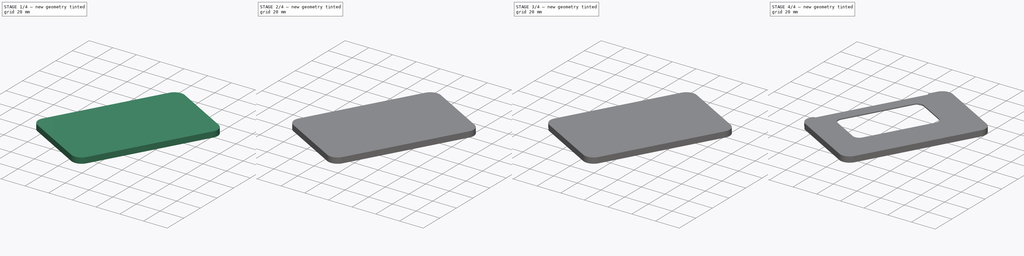
[diagram: build sequence overview — one tinted view per stage of 4, left to right]
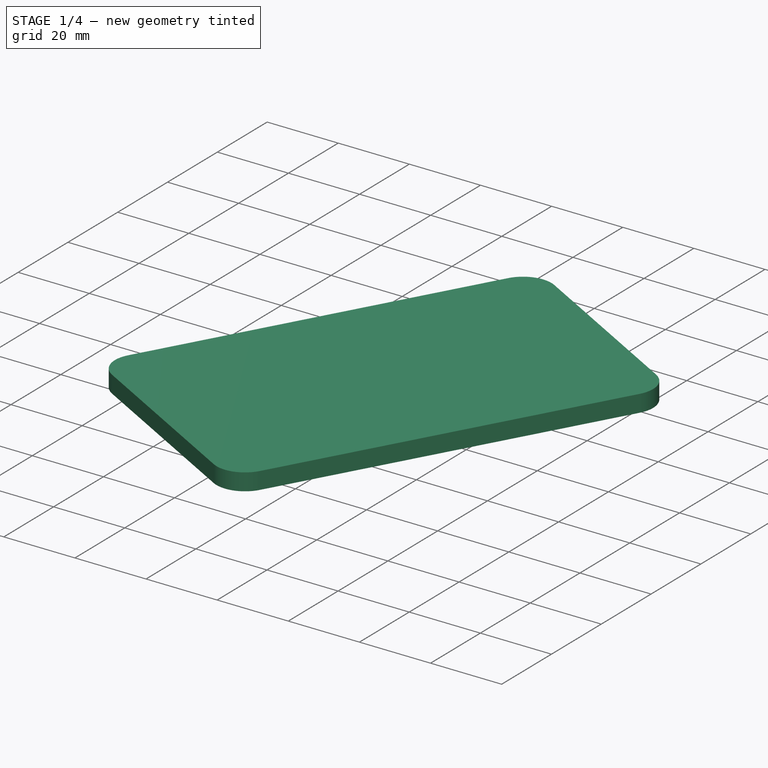
[diagram: stage 1 of 4 — iso view after this stage's code; geometry added in this stage tinted green]
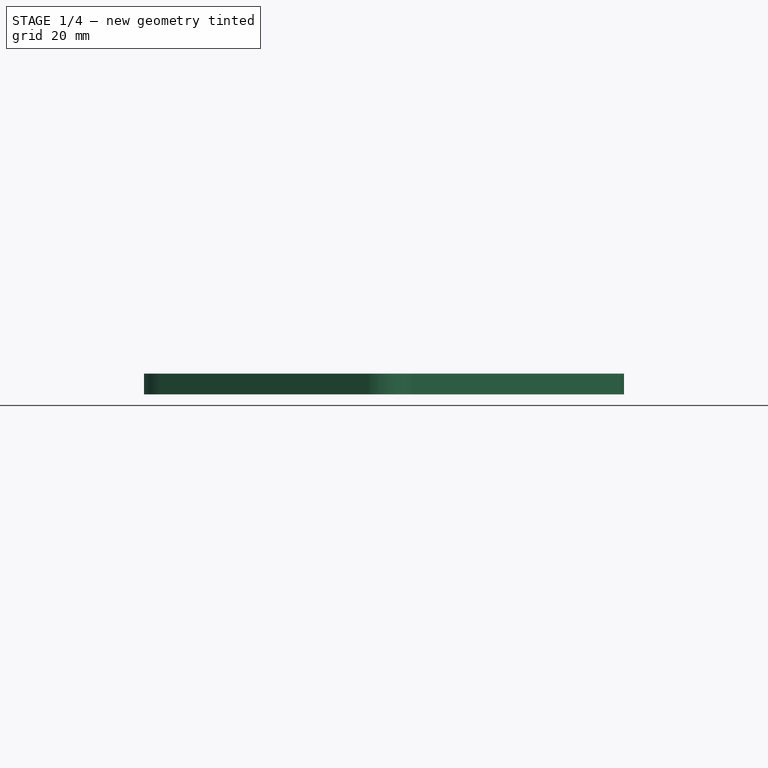
[diagram: stage 1 of 4 — front view after this stage's code; geometry added in this stage tinted green]
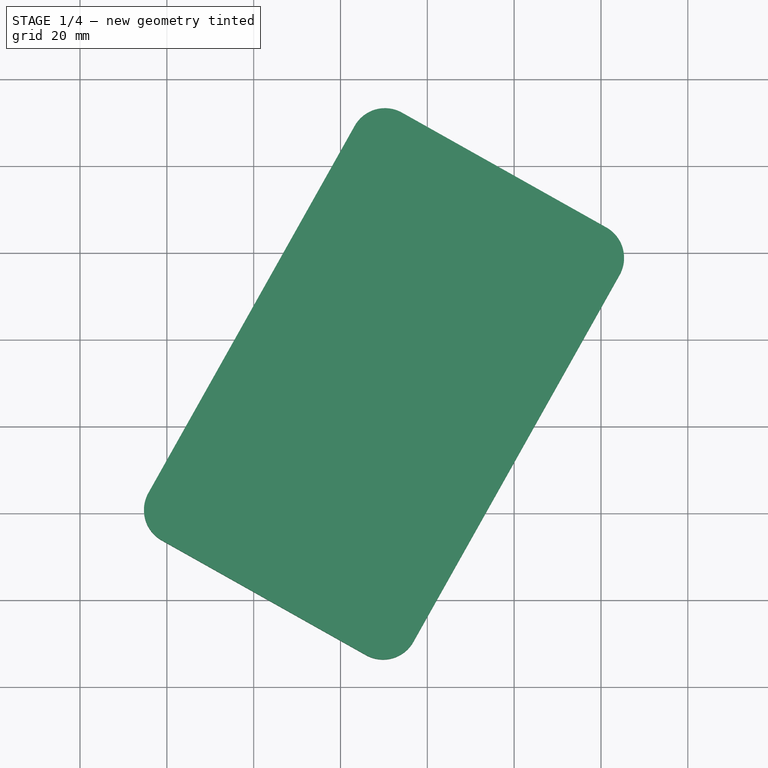
[diagram: stage 1 of 4 — top view after this stage's code; geometry added in this stage tinted green]
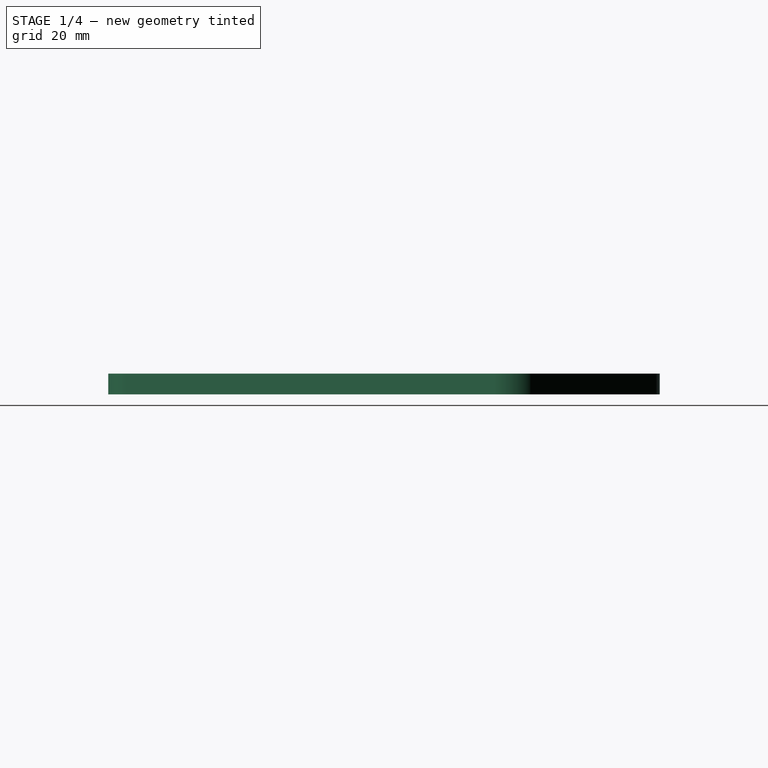
[diagram: stage 1 of 4 — right view after this stage's code; geometry added in this stage tinted green]
FCSTD DOCUMENT  (FreeCAD 0.21R33668 +26 (Git))
Label: Wallter_Slider_Cover
License: All rights reserved
LicenseURL: http://en.wikipedia.org/wiki/All_rights_reserved
objects: Sketcher::SketchObject×15, PartDesign::Pocket×8, App::DocumentObjectGroup×3, PartDesign::CoordinateSystem×3, PartDesign::Pad×2, PartDesign::Revolution×2, App::Part×2, Spreadsheet::Sheet×1, App::FeaturePython×1, PartDesign::Groove×1, PartDesign::Body×1
note: 45 computed .brp shape members not serialized (recipe doc carries the construction recipe); baked Part::Feature solids carry a one-line shape summary decoded from their .brp

FEATURE [Spreadsheet::Sheet] Spreadsheet  label="vars"
  cells = A1='Variable Description; B1='Alias; C1='Value; A2='Tolerancing - FDM in-layer Outer-surface Offset; B2='xyo; C2(xyo)==0 mm; A3='Tolerancing - FDM in-layer Inner-surface Offset; B3='xyi; C3(xyi)==0.35 mm; A4='Tolerancing - FDM ceiling offset; B4='zc; C4(zc)==-0.4 mm; A5='Tolerancing - FDM floor offset; B5='zf; C5(zf)==0 mm; A6='Tolerancing - clearance gap; B6='clearance_gap; C6(clearance_gap)==0.2 mm; A7='Tolerancing - Interference gap; B7='interference_gap; C7(interference_gap)==0 mm; A8='Tolerancing - generic total tolerance; B8='tol; C8(tol)==0.4 mm; A10='Module Separator Wall Thickness; B10='module_separator_wall; C10(module_separator_wall)==0.8 mm; A11='Credit card cavity length; B11='cc_length; C11(cc_length)==Sketch.Constraints.card_length; A12='Credit card cavity width; B12='cc_width; C12(cc_width)==Sketch.Constraints.card_width; A13='Credit card cavity thickness; B13='cc_thickness; C13(cc_thickness)==0.8 mm; A14='Total card angle when fanned out; B14='total_card_angle; C14(total_card_angle)==card_angle * (num_cards - 1); A15='number of cards; B15='num_cards; C15(num_cards)=6; A16='Card separation angle when fanned out; B16='card_angle; C16(card_angle)==Sketch.Constraints.card_angle; A17='Total thickness; B17='thickness; C17(thickness)==module_separator_wall * 2 + cc_thickness * num_cards
FEATURE [App::DocumentObjectGroup] Parts
FEATURE [PartDesign::CoordinateSystem] LCS_Origin  label="LCS_Assembly"
  AttacherType = Attacher::AttachEngine3D
  MapMode = 2
  Support = -> [X_Axis]
FEATURE [App::DocumentObjectGroup] Constraints
FEATURE [App::FeaturePython] Variables  # WARN: FeaturePython — macro-defined, semantics opaque (R4)
  Type = App::PropertyContainer
FEATURE [App::DocumentObjectGroup] Configurations
FEATURE [PartDesign::CoordinateSystem] LCS_0  label="LCS_Part"
  AttacherType = Attacher::AttachEngine3D
  MapMode = 2
  Support = -> [X_Axis001]
FEATURE [PartDesign::CoordinateSystem] LCS_001  label="LCS_Body"
  AttacherType = Attacher::AttachEngine3D
  MapMode = 2
  Support = -> [X_Axis002]
FEATURE [Sketcher::SketchObject] Sketch  label="MasterSketch"
  FullyConstrained = false
  MapMode = 5
  Support = -> [XY_Plane002]
  sketch-geometry (80):
    g0: LineSegment StartX=-1.19552 StartY=-6.21053 StartZ=0 EndX=45.8819 EndY=-32.6627 EndZ=0
    g1: LineSegment StartX=56.7752 StartY=-29.6071 StartZ=0 EndX=104.291 EndY=54.9579 EndZ=0
    g2: LineSegment StartX=101.235 StartY=65.8512 StartZ=0 EndX=54.1581 EndY=92.3033 EndZ=0
    g3: LineSegment StartX=43.2648 StartY=89.2477 StartZ=0 EndX=-4.25112 EndY=4.68274 EndZ=0
    g4: ArcOfCircle CenterX=50.2392 CenterY=85.3289 CenterZ=0 NormalX=0 NormalY=0 NormalZ=1 AngleXU=0 Radius=8 StartAngle=1.05887 EndAngle=2.62967
    g5: GeomPoint X=47.1836 Y=96.2222 Z=0
    g6: ArcOfCircle CenterX=97.3166 CenterY=58.8768 CenterZ=0 NormalX=0 NormalY=0 NormalZ=1 AngleXU=0 Radius=8 StartAngle=5.77126 EndAngle=7.34206
    g7: GeomPoint X=108.21 Y=61.9323 Z=0
    g8: ArcOfCircle CenterX=49.8007 CenterY=-25.6883 CenterZ=0 NormalX=0 NormalY=0 NormalZ=1 AngleXU=0 Radius=8 StartAngle=4.20047 EndAngle=5.77126
    g9: GeomPoint X=52.8563 Y=-36.5815 Z=0
    g10: ArcOfCircle CenterX=2.72332 CenterY=0.763899 CenterZ=0 NormalX=0 NormalY=0 NormalZ=1 AngleXU=0 Radius=8 StartAngle=2.62967 EndAngle=4.20047
    g11: GeomPoint X=-8.16995 Y=-2.2917 Z=0
    g12: Circle CenterX=0 CenterY=0 CenterZ=0 NormalX=0 NormalY=0 NormalZ=1 AngleXU=0 Radius=5
    g13: ArcOfCircle CenterX=-2 CenterY=8 CenterZ=0 NormalX=0 NormalY=0 NormalZ=1 AngleXU=0 Radius=3 StartAngle=3.14159 EndAngle=4.71239
    g14: LineSegment StartX=-5 StartY=8 StartZ=0 EndX=-5 EndY=87.8 EndZ=0
    g15: ArcOfCircle CenterX=-2 CenterY=87.8 CenterZ=0 NormalX=0 NormalY=0 NormalZ=1 AngleXU=0 Radius=3 StartAngle=1.5708 EndAngle=3.14159
    g16: LineSegment StartX=-2 StartY=90.8 StartZ=0 EndX=46.1 EndY=90.8 EndZ=0
    g17: ArcOfCircle CenterX=46.1 CenterY=87.8 CenterZ=0 NormalX=0 NormalY=0 NormalZ=1 AngleXU=0 Radius=3 StartAngle=1.9e-15 EndAngle=1.5708
    g18: LineSegment StartX=49.1 StartY=87.8 StartZ=0 EndX=49.1 EndY=8 EndZ=0
    g19: ArcOfCircle CenterX=46.1 CenterY=8 CenterZ=0 NormalX=0 NormalY=0 NormalZ=1 AngleXU=0 Radius=3 StartAngle=4.71239 EndAngle=6.28319
    g20: LineSegment StartX=46.1 StartY=5 StartZ=0 EndX=-2 EndY=5 EndZ=0
    g21: GeomPoint X=-5 Y=5 Z=0
    g22: GeomPoint X=49.1 Y=90.8 Z=0
    g23: ArcOfCircle CenterX=-1.17188 CenterY=8.16252 CenterZ=0 NormalX=0 NormalY=0 NormalZ=1 AngleXU=0 Radius=3 StartAngle=3.03921 EndAngle=4.61
    g24: LineSegment StartX=-4.15617 StartY=8.46914 StartZ=0 EndX=3.99985 EndY=87.8512 EndZ=0
    g25: ArcOfCircle CenterX=6.98414 CenterY=87.5446 CenterZ=0 NormalX=0 NormalY=0 NormalZ=1 AngleXU=0 Radius=3 StartAngle=1.46841 EndAngle=3.03921
    g26: LineSegment StartX=7.29076 StartY=90.5289 StartZ=0 EndX=55.1389 EndY=85.6128 EndZ=0
    g27: ArcOfCircle CenterX=54.8323 CenterY=82.6285 CenterZ=0 NormalX=0 NormalY=0 NormalZ=1 AngleXU=0 Radius=3 StartAngle=6.1808 EndAngle=7.7516
    g28: LineSegment StartX=57.8165 StartY=82.3219 StartZ=0 EndX=49.6605 EndY=2.9398 EndZ=0
    g29: ArcOfCircle CenterX=46.6762 CenterY=3.24642 CenterZ=0 NormalX=0 NormalY=0 NormalZ=1 AngleXU=0 Radius=3 StartAngle=4.61 EndAngle=6.1808
    g30: LineSegment StartX=46.3696 StartY=0.262128 StartZ=0 EndX=-1.4785 EndY=5.17823 EndZ=0
    g31: GeomPoint X=-4.46279 Y=5.48485 Z=0
    g32: GeomPoint X=58.1232 Y=85.3062 Z=0
    g33: ArcOfCircle CenterX=46.7636 CenterY=-1.54116 CenterZ=0 NormalX=0 NormalY=0 NormalZ=1 AngleXU=0 Radius=3 StartAngle=4.50762 EndAngle=6.07842
    g34: LineSegment StartX=46.1536 StartY=-4.47849 StartZ=0 EndX=-0.94151 EndY=5.30222 EndZ=0
    g35: ArcOfCircle CenterX=-0.331486 CenterY=8.23955 CenterZ=0 NormalX=0 NormalY=0 NormalZ=1 AngleXU=0 Radius=3 StartAngle=2.93682 EndAngle=4.50762
    g36: LineSegment StartX=-3.26881 StartY=8.84957 StartZ=0 EndX=12.9578 EndY=86.9824 EndZ=0
    g37: ArcOfCircle CenterX=15.8951 CenterY=86.3724 CenterZ=0 NormalX=0 NormalY=0 NormalZ=1 AngleXU=0 Radius=3 StartAngle=1.36603 EndAngle=2.93682
    g38: LineSegment StartX=16.5052 StartY=89.3097 StartZ=0 EndX=63.6003 EndY=79.529 EndZ=0
    g39: ArcOfCircle CenterX=62.9902 CenterY=76.5916 CenterZ=0 NormalX=0 NormalY=0 NormalZ=1 AngleXU=0 Radius=3 StartAngle=6.07842 EndAngle=7.64921
    g40: LineSegment StartX=65.9276 StartY=75.9816 StartZ=0 EndX=49.7009 EndY=-2.15119 EndZ=0
    g41: GeomPoint X=49.0909 Y=-5.08851 Z=0
    g42: GeomPoint X=13.5678 Y=89.9197 Z=0
    g43: ArcOfCircle CenterX=24.6397 CenterY=84.2955 CenterZ=0 NormalX=0 NormalY=0 NormalZ=1 AngleXU=0 Radius=3 StartAngle=1.26364 EndAngle=2.83444
    g44: LineSegment StartX=25.5467 StartY=87.1551 StartZ=0 EndX=71.3955 EndY=72.6122 EndZ=0
    g45: ArcOfCircle CenterX=70.4885 CenterY=69.7526 CenterZ=0 NormalX=0 NormalY=0 NormalZ=1 AngleXU=0 Radius=3 StartAngle=5.97603 EndAngle=7.54683
    g46: LineSegment StartX=73.3481 StartY=68.8456 StartZ=0 EndX=49.2208 EndY=-7.21965 EndZ=0
    g47: ArcOfCircle CenterX=46.3612 CenterY=-6.31261 CenterZ=0 NormalX=0 NormalY=0 NormalZ=1 AngleXU=0 Radius=3 StartAngle=4.40524 EndAngle=5.97603
    g48: LineSegment StartX=45.4542 StartY=-9.1722 StartZ=0 EndX=-0.394662 EndY=5.37068 EndZ=0
    g49: ArcOfCircle CenterX=0.512379 CenterY=8.23028 CenterZ=0 NormalX=0 NormalY=0 NormalZ=1 AngleXU=0 Radius=3 StartAngle=2.83444 EndAngle=4.40524
    g50: LineSegment StartX=-2.34721 StartY=9.13732 StartZ=0 EndX=21.7801 EndY=85.2025 EndZ=0
    g51: GeomPoint X=22.6871 Y=88.0621 Z=0
    g52: GeomPoint X=48.3138 Y=-10.0792 Z=0
    g53: ArcOfCircle CenterX=33.1261 CenterY=81.3357 CenterZ=0 NormalX=0 NormalY=0 NormalZ=1 AngleXU=0 Radius=3 StartAngle=1.16126 EndAngle=2.73205
    g54: LineSegment StartX=34.3207 StartY=84.0876 StartZ=0 EndX=78.443 EndY=64.9349 EndZ=0
    g55: ArcOfCircle CenterX=77.2485 CenterY=62.183 CenterZ=0 NormalX=0 NormalY=0 NormalZ=1 AngleXU=0 Radius=3 StartAngle=5.87365 EndAngle=7.44444
    g56: LineSegment StartX=80.0004 StartY=60.9884 StartZ=0 EndX=48.2251 EndY=-12.2125 EndZ=0
    g57: ArcOfCircle CenterX=45.4732 CenterY=-11.0179 CenterZ=0 NormalX=0 NormalY=0 NormalZ=1 AngleXU=0 Radius=3 StartAngle=4.30285 EndAngle=5.87365
    g58: LineSegment StartX=44.2787 StartY=-13.7698 StartZ=0 EndX=0.15632 EndY=5.3829 EndZ=0
    g59: ArcOfCircle CenterX=1.35088 CenterY=8.13481 CenterZ=0 NormalX=0 NormalY=0 NormalZ=1 AngleXU=0 Radius=3 StartAngle=2.73205 EndAngle=4.30285
    g60: LineSegment StartX=-1.40104 StartY=9.32937 StartZ=0 EndX=30.3742 EndY=82.5303 EndZ=0
    g61: GeomPoint X=31.5688 Y=85.2822 Z=0
    g62: GeomPoint X=47.0306 Y=-14.9644 Z=0
    g63: ArcOfCircle CenterX=41.2656 CenterY=77.5241 CenterZ=0 NormalX=0 NormalY=0 NormalZ=1 AngleXU=0 Radius=3 StartAngle=1.05887 EndAngle=2.62967
    g64: LineSegment StartX=42.7352 StartY=80.1395 StartZ=0 EndX=84.669 EndY=56.5775 EndZ=0
    g65: ArcOfCircle CenterX=83.1994 CenterY=53.9621 CenterZ=0 NormalX=0 NormalY=0 NormalZ=1 AngleXU=0 Radius=3 StartAngle=5.77126 EndAngle=7.34206
    g66: LineSegment StartX=85.8148 StartY=52.4925 StartZ=0 EndX=46.7244 EndY=-17.0774 EndZ=0
    g67: ArcOfCircle CenterX=44.109 CenterY=-15.6079 CenterZ=0 NormalX=0 NormalY=0 NormalZ=1 AngleXU=0 Radius=3 StartAngle=4.20047 EndAngle=5.77126
    g68: LineSegment StartX=42.6394 StartY=-18.2233 StartZ=0 EndX=0.705665 EndY=5.33873 EndZ=0
    g69: ArcOfCircle CenterX=2.17523 CenterY=7.95414 CenterZ=0 NormalX=0 NormalY=0 NormalZ=1 AngleXU=0 Radius=3 StartAngle=2.62967 EndAngle=4.20047
    g70: LineSegment StartX=-0.440184 StartY=9.42371 StartZ=0 EndX=38.6502 EndY=78.9937 EndZ=0
    g71: GeomPoint X=-311.994 Y=81.2627 Z=0
    g72: GeomPoint X=45.2549 Y=-19.6928 Z=0
    g73: LineSegment StartX=-5 StartY=87.8 StartZ=0 EndX=3.99985 EndY=87.8512 EndZ=0
    g74: LineSegment StartX=3.99985 StartY=87.8512 StartZ=0 EndX=12.9578 EndY=86.9824 EndZ=0
    g75: LineSegment StartX=12.9578 StartY=86.9824 StartZ=0 EndX=21.7801 EndY=85.2025 EndZ=0
    g76: LineSegment StartX=21.7801 StartY=85.2025 StartZ=0 EndX=30.3742 EndY=82.5303 EndZ=0
    g77: LineSegment StartX=30.3742 StartY=82.5303 StartZ=0 EndX=38.6502 EndY=78.9937 EndZ=0
    g78: LineSegment StartX=-2.93913 StartY=-5.23082 StartZ=0 EndX=0 EndY=0 EndZ=0
    g79: LineSegment StartX=0 StartY=0 StartZ=0 EndX=-5.23082 EndY=2.93913 EndZ=0
  constraints (189):
    c: PointOnObject(g5,g2)
    c: PointOnObject(g5,g3)
    c: Tangent(g2,g4) = -1.5708
    c: Tangent(g3,g4) = -1.5708
    c: PointOnObject(g7,g1)
    c: PointOnObject(g7,g2)
    c: Tangent(g1,g6) = -1.5708
    c: Tangent(g2,g6) = -1.5708
    c: PointOnObject(g9,g0)
    c: PointOnObject(g9,g1)
    c: Tangent(g0,g8) = -1.5708
    c: Tangent(g1,g8) = -1.5708
    c: PointOnObject(g11,g0)
    c: PointOnObject(g11,g3)
    c: Tangent(g0,g10) = -1.5708
    c: Tangent(g3,g10) = -1.5708
    c: Equal(g10,g4)
    c: Equal(g4,g6)
    c: Equal(g6,g8)
    c: Radius(g6) = 8
    c: Coincident(g12,g-1)
    c: Diameter(g12) = 10
    c: Tangent(g13,g14) = 1.5708
    c: Tangent(g14,g15) = 1.5708
    c: Tangent(g15,g16) = 1.5708
    c: Tangent(g16,g17) = 1.5708
    c: Tangent(g17,g18) = 1.5708
    c: Tangent(g18,g19) = 1.5708
    c: Tangent(g19,g20) = 1.5708
    c: Tangent(g20,g13) = 1.5708
    c: Equal(g13,g15)
    c: Equal(g15,g17)
    c: Equal(g17,g19)
    c: PointOnObject(g21,g14)
    c: PointOnObject(g21,g20)
    c: PointOnObject(g22,g16)
    c: PointOnObject(g22,g18)
    c: Tangent(g23,g24) = 1.5708
    c: Tangent(g24,g25) = 1.5708
    c: Tangent(g25,g26) = 1.5708
    c: Tangent(g26,g27) = 1.5708
    c: Tangent(g27,g28) = 1.5708
    c: Tangent(g28,g29) = 1.5708
    c: Tangent(g29,g30) = 1.5708
    c: Tangent(g30,g23) = 1.5708
    c: Equal(g23,g25)
    c: Equal(g25,g27)
    c: Equal(g27,g29)
    c: PointOnObject(g31,g24)
    c: PointOnObject(g31,g30)
    c: PointOnObject(g32,g26)
    c: PointOnObject(g32,g28)
    c: Tangent(g33,g34) = 1.5708
    c: Tangent(g34,g35) = 1.5708
    c: Tangent(g35,g36) = 1.5708
    c: Tangent(g36,g37) = 1.5708
    c: Tangent(g37,g38) = 1.5708
    c: Tangent(g38,g39) = 1.5708
    c: Tangent(g39,g40) = 1.5708
    c: Tangent(g40,g33) = 1.5708
    c: Equal(g33,g35)
    c: Equal(g35,g37)
    c: Equal(g37,g39)
    c: PointOnObject(g41,g34)
    c: PointOnObject(g41,g40)
    c: PointOnObject(g42,g36)
    c: PointOnObject(g42,g38)
    c: Tangent(g43,g44) = 1.5708
    c: Tangent(g44,g45) = 1.5708
    c: Tangent(g45,g46) = 1.5708
    c: Tangent(g46,g47) = 1.5708
    c: Tangent(g47,g48) = 1.5708
    c: Tangent(g48,g49) = 1.5708
    c: Tangent(g49,g50) = 1.5708
    c: Tangent(g50,g43) = 1.5708
    c: Equal(g43,g45)
    c: Equal(g45,g47)
    c: Equal(g47,g49)
    c: PointOnObject(g51,g44)
    c: PointOnObject(g51,g50)
    c: PointOnObject(g52,g46)
    c: PointOnObject(g52,g48)
    c: Tangent(g53,g54) = 1.5708
    c: Tangent(g54,g55) = 1.5708
    c: Tangent(g55,g56) = 1.5708
    c: Tangent(g56,g57) = 1.5708
    c: Tangent(g57,g58) = 1.5708
    c: Tangent(g58,g59) = 1.5708
    c: Tangent(g59,g60) = 1.5708
    c: Tangent(g60,g53) = 1.5708
    c: Equal(g53,g55)
    c: Equal(g55,g57)
    c: Equal(g57,g59)
    c: PointOnObject(g61,g54)
    c: PointOnObject(g61,g60)
    c: PointOnObject(g62,g56)
    c: PointOnObject(g62,g58)
    c: Tangent(g63,g64) = 1.5708
    c: Tangent(g64,g65) = 1.5708
    c: Tangent(g65,g66) = 1.5708
    c: Tangent(g66,g67) = 1.5708
    c: Tangent(g67,g68) = 1.5708
    c: Tangent(g68,g69) = 1.5708
    c: Tangent(g69,g70) = 1.5708
    c: Tangent(g70,g63) = 1.5708
    c: Equal(g63,g65)
    c: Equal(g65,g67)
    c: Equal(g67,g69)
    c: PointOnObject(g72,g66)
    c: PointOnObject(g72,g68)
    c: Perpendicular(g18,g16)
    c: Perpendicular(g20,g18)
    c: Perpendicular(g20,g14)
    c: Perpendicular(g28,g30)
    c: Perpendicular(g26,g28)
    c: Perpendicular(g24,g26)
    c: Perpendicular(g38,g40)
    c: Perpendicular(g36,g38)
    c: Perpendicular(g34,g36)
    c: Perpendicular(g46,g44)
    c: Perpendicular(g48,g46)
    c: Perpendicular(g48,g50)
    c: Perpendicular(g58,g60)
    c: Perpendicular(g58,g56)
    c: Perpendicular(g56,g54)
    c: Perpendicular(g64,g66)
    c: Perpendicular(g70,g64)
    c: Perpendicular(g68,g70)
    c: Distance(g13,g18) = 54.1  'card_width'
    c: Radius(g15) = 3
    c: Tangent(g20,g12)
    c: Equal(g16,g26)
    c: Equal(g26,g38)
    c: Equal(g38,g44)
    c: Equal(g15,g25)
    c: Equal(g25,g37)
    c: Equal(g37,g43)
    c: Equal(g43,g53)
    c: Equal(g53,g63)
    c: Equal(g64,g54)
    c: Equal(g54,g44)
    c: Equal(g70,g60)
    c: Equal(g60,g50)
    c: Equal(g50,g36)
    c: Equal(g36,g24)
    c: Equal(g24,g14)
    c: Tangent(g30,g12)
    c: Tangent(g12,g24)
    c: Tangent(g34,g12)
    c: Angle(g24,g14) = 0.102385  'card_angle'
    c: Tangent(g36,g12)
    c: Coincident(g73,g14)
    c: Coincident(g73,g24)
    c: Coincident(g74,g24)
    c: Coincident(g74,g36)
    c: Coincident(g75,g36)
    c: Coincident(g75,g43)
    c: Equal(g73,g74)
    c: Equal(g74,g75)
    c: Tangent(g50,g12)
    c: Tangent(g48,g12)
    c: Tangent(g12,g58)
    c: Tangent(g12,g60)
    c: Tangent(g68,g12)
    c: Tangent(g12,g70)
    c: Coincident(g76,g43)
    c: Coincident(g76,g53)
    c: Coincident(g77,g53)
    c: Coincident(g77,g63)
    c: Equal(g77,g76)
    c: Equal(g76,g75)
    c: Perpendicular(g3,g2)
    c: Perpendicular(g2,g1)
    c: Perpendicular(g3,g0)
    c: Distance(g73) = 9
    c: Distance(g19,g16) = 85.8  'card_length'
    c: Distance(g7,g5) = 70
    c: Distance(g7,g9) = 113
    c: Vertical(g14)
    c: Parallel(g66,g1)
    c: Tangent(g12,g14)
    c: Coincident(g78,g12)
    c: Coincident(g79,g12)
    c: PointOnObject(g78,g0)
    c: PointOnObject(g79,g3)
    c: Perpendicular(g79,g3)
    c: Perpendicular(g0,g78)
    c: Distance(g79) = 6
    c: Distance(g78) = 6
FEATURE [Sketcher::SketchObject] Sketch001
  ExternalGeometry = -> [Sketch]
  FullyConstrained = true
  MapMode = 5
  Support = -> [XY_Plane002]
  sketch-geometry (8):
    g0: ArcOfCircle CenterX=49.8007 CenterY=-25.6883 CenterZ=0 NormalX=0 NormalY=0 NormalZ=1 AngleXU=0 Radius=8 StartAngle=4.20047 EndAngle=5.77126
    g1: ArcOfCircle CenterX=2.72332 CenterY=0.763899 CenterZ=0 NormalX=0 NormalY=0 NormalZ=1 AngleXU=0 Radius=8 StartAngle=2.62967 EndAngle=4.20047
    g2: ArcOfCircle CenterX=50.2392 CenterY=85.3289 CenterZ=0 NormalX=0 NormalY=0 NormalZ=1 AngleXU=0 Radius=8 StartAngle=1.05887 EndAngle=2.62967
    g3: ArcOfCircle CenterX=97.3166 CenterY=58.8768 CenterZ=0 NormalX=0 NormalY=0 NormalZ=1 AngleXU=0 Radius=8 StartAngle=5.77126 EndAngle=7.34206
    g4: LineSegment StartX=54.1581 StartY=92.3033 StartZ=0 EndX=101.235 EndY=65.8512 EndZ=0
    g5: LineSegment StartX=104.291 StartY=54.9579 StartZ=0 EndX=56.7752 EndY=-29.6071 EndZ=0
    g6: LineSegment StartX=-4.25112 StartY=4.68274 StartZ=0 EndX=43.2648 EndY=89.2477 EndZ=0
    g7: LineSegment StartX=-1.19552 StartY=-6.21053 StartZ=0 EndX=45.8819 EndY=-32.6627 EndZ=0
  constraints (20):
    c: Coincident(g0,g-6)
    c: Coincident(g0,g-6)
    c: Equal(g-6,g0)
    c: Coincident(g1,g-3)
    c: Coincident(g1,g-3)
    c: Equal(g-3,g1)
    c: Coincident(g2,g-4)
    c: Coincident(g2,g-4)
    c: Coincident(g3,g-5)
    c: Coincident(g3,g-5)
    c: Coincident(g4,g2)
    c: Coincident(g4,g3)
    c: Coincident(g5,g3)
    c: Coincident(g5,g0)
    c: Coincident(g6,g1)
    c: Coincident(g6,g2)
    c: Coincident(g7,g1)
    c: Coincident(g7,g0)
    c: Equal(g-4,g2)
    c: Equal(g-5,g3)
FEATURE [PartDesign::Pad] Pad
  Direction = (0,0,1)
  Length = 6.4
  Length2 = -1.6
  Profile = -> Sketch001
  ReferenceAxis = -> Sketch001 [N_Axis]
  Type = 4
  expr: Length = <<vars>>.thickness
  expr: Length2 = -(<<vars>>.module_separator_wall + <<vars>>.cc_thickness)
FEATURE [Sketcher::SketchObject] Sketch003
  ExternalGeometry = -> [Sketch]
  FullyConstrained = true
  MapMode = 5
  Support = -> [XY_Plane002]
  expr: Constraints[45] = <<vars>>.card_angle * 5
  sketch-geometry (18):
    g0: ArcOfCircle CenterX=2.17523 CenterY=7.95414 CenterZ=0 NormalX=0 NormalY=0 NormalZ=1 AngleXU=0 Radius=3 StartAngle=2.62967 EndAngle=4.20047
    g1: LineSegment StartX=-0.440184 StartY=9.42371 StartZ=0 EndX=38.6502 EndY=78.9937 EndZ=0
    g2: ArcOfCircle CenterX=41.2656 CenterY=77.5241 CenterZ=0 NormalX=0 NormalY=0 NormalZ=1 AngleXU=0 Radius=3 StartAngle=1.05887 EndAngle=2.62967
    g3: LineSegment StartX=42.7352 StartY=80.1395 StartZ=0 EndX=84.669 EndY=56.5775 EndZ=0
    g4: ArcOfCircle CenterX=83.1994 CenterY=53.9621 CenterZ=0 NormalX=0 NormalY=0 NormalZ=1 AngleXU=0 Radius=3 StartAngle=5.77126 EndAngle=7.34206
    g5: LineSegment StartX=85.8148 StartY=52.4925 StartZ=0 EndX=46.7244 EndY=-17.0774 EndZ=0
    g6: ArcOfCircle CenterX=44.109 CenterY=-15.6079 CenterZ=0 NormalX=0 NormalY=0 NormalZ=1 AngleXU=0 Radius=3 StartAngle=4.20047 EndAngle=5.77126
    g7: LineSegment StartX=42.6394 StartY=-18.2233 StartZ=0 EndX=0.705665 EndY=5.33873 EndZ=0
    g8: GeomPoint X=-1.90975 Y=6.80829 Z=0
    g9: GeomPoint X=87.2844 Y=55.108 Z=0
    g10: ArcOfCircle CenterX=0 CenterY=0 CenterZ=0 NormalX=0 NormalY=0 NormalZ=1 AngleXU=0 Radius=5 StartAngle=1.05887 EndAngle=1.57079
    g11: LineSegment StartX=1.76628e-05 StartY=5 StartZ=0 EndX=-15 EndY=5 EndZ=0
    g12: LineSegment StartX=-15 StartY=5 StartZ=0 EndX=-15 EndY=90.8 EndZ=0
    g13: LineSegment StartX=-15 StartY=90.8 StartZ=0 EndX=46.1 EndY=90.8 EndZ=0
    g14: ArcOfCircle CenterX=46.1 CenterY=87.8 CenterZ=0 NormalX=0 NormalY=0 NormalZ=1 AngleXU=0 Radius=3 StartAngle=1.0873 EndAngle=1.5708
    g15: ArcOfCircle CenterX=-4.8e-15 CenterY=0 CenterZ=0 NormalX=0 NormalY=0 NormalZ=1 AngleXU=0 Radius=102.167 StartAngle=0.575382 EndAngle=1.0873
    g16: ArcOfCircle CenterX=83.1994 CenterY=53.9621 CenterZ=0 NormalX=0 NormalY=0 NormalZ=1 AngleXU=0 Radius=3 StartAngle=5.77126 EndAngle=6.85857
    g17: LineSegment StartX=42.6394 StartY=-18.2233 StartZ=0 EndX=2.44927 EndY=4.35902 EndZ=0
  constraints (46):
    c: Tangent(g0,g1) = 1.5708
    c: Tangent(g1,g2) = 1.5708
    c: Tangent(g2,g3) = 1.5708
    c: Tangent(g3,g4) = 1.5708
    c: Tangent(g4,g5) = 1.5708
    c: Tangent(g5,g6) = 1.5708
    c: Tangent(g6,g7) = 1.5708
    c: Tangent(g7,g0) = 1.5708
    c: Equal(g0,g2)
    c: Equal(g2,g4)
    c: Equal(g4,g6)
    c: PointOnObject(g8,g1)
    c: PointOnObject(g8,g7)
    c: PointOnObject(g9,g3)
    c: PointOnObject(g9,g5)
    c: Perpendicular(g3,g1)
    c: Perpendicular(g5,g3)
    c: Perpendicular(g7,g5)
    c: Equal(g2,g-5)
    c: Equal(g-4,g1)
    c: Equal(g3,g-6)
    c: Tangent(g7,g-3)
    c: Tangent(g1,g-3)
    c: Coincident(g10,g-3)
    c: PointOnObject(g10,g-3)
    c: Coincident(g11,g10)
    c: Horizontal(g11)
    c: Coincident(g12,g11)
    c: Vertical(g12)
    c: Coincident(g13,g12)
    c: PointOnObject(g15,g4)
    c: Coincident(g16,g5)
    c: Tangent(g16,g15) = -1.5708
    c: Tangent(g15,g14) = -1.5708
    c: Tangent(g14,g13) = 1.5708
    c: PointOnObject(g-6,g13)
    c: DistanceX(g11,g10) = 15
    c: PointOnObject(g-11,g11)
    c: PointOnObject(g10,g7)
    c: PointOnObject(g15,g-1)
    c: Coincident(g13,g-8)
    c: Equal(g14,g-8)
    c: Equal(g16,g4)
    c: Coincident(g17,g6)
    c: Coincident(g17,g10)
    c: Angle(g1,g-4) = 0.511923
FEATURE [PartDesign::Pocket] Pocket001  label="Card1"
  BaseFeature = -> Pad
  Direction = (0,0,-1)
  Length = 1.6
  Length2 = -0.8
  Profile = -> Sketch003
  ReferenceAxis = -> Sketch003 [N_Axis]
  Reversed = true
  Type = 4
  expr: Length = <<vars>>.module_separator_wall + <<vars>>.cc_thickness * 1
  expr: Length2 = -<<vars>>.module_separator_wall
FEATURE [Sketcher::SketchObject] Sketch009
  ExternalGeometry = -> [Sketch]
  FullyConstrained = true
  MapMode = 5
  Support = -> [XY_Plane002]
  expr: Constraints[33] = <<vars>>.total_card_angle
  expr: Constraints[57] = <<vars>>.card_angle * 4
  sketch-geometry (28):
    g0: ArcOfCircle CenterX=2.17523 CenterY=7.95414 CenterZ=0 NormalX=0 NormalY=0 NormalZ=1 AngleXU=0 Radius=3 StartAngle=2.62967 EndAngle=4.20047
    g1: LineSegment StartX=-0.440184 StartY=9.42371 StartZ=0 EndX=38.6502 EndY=78.9937 EndZ=0
    g2: ArcOfCircle CenterX=41.2656 CenterY=77.5241 CenterZ=0 NormalX=0 NormalY=0 NormalZ=1 AngleXU=0 Radius=3 StartAngle=1.05887 EndAngle=2.62967
    g3: LineSegment StartX=42.7352 StartY=80.1395 StartZ=0 EndX=84.669 EndY=56.5775 EndZ=0
    g4: ArcOfCircle CenterX=83.1994 CenterY=53.9621 CenterZ=0 NormalX=0 NormalY=0 NormalZ=1 AngleXU=0 Radius=3 StartAngle=5.77126 EndAngle=7.34206
    g5: LineSegment StartX=85.8148 StartY=52.4925 StartZ=0 EndX=46.7244 EndY=-17.0774 EndZ=0
    g6: ArcOfCircle CenterX=44.109 CenterY=-15.6079 CenterZ=0 NormalX=0 NormalY=0 NormalZ=1 AngleXU=0 Radius=3 StartAngle=4.20047 EndAngle=5.77126
    g7: LineSegment StartX=42.6394 StartY=-18.2233 StartZ=0 EndX=0.705665 EndY=5.33873 EndZ=0
    g8: GeomPoint X=-1.90975 Y=6.80829 Z=0
    g9: GeomPoint X=87.2844 Y=55.108 Z=0
    g10: ArcOfCircle CenterX=0 CenterY=0 CenterZ=0 NormalX=0 NormalY=0 NormalZ=1 AngleXU=0 Radius=5 StartAngle=1.05888 EndAngle=1.46841
    g11: ArcOfCircle CenterX=5.55e-14 CenterY=0 CenterZ=0 NormalX=0 NormalY=0 NormalZ=1 AngleXU=0 Radius=102.167 StartAngle=0.575382 EndAngle=0.98492
    g12: ArcOfCircle CenterX=83.1994 CenterY=53.9621 CenterZ=0 NormalX=0 NormalY=0 NormalZ=1 AngleXU=0 Radius=3 StartAngle=5.77126 EndAngle=6.85857
    g13: LineSegment StartX=42.6394 StartY=-18.2233 StartZ=0 EndX=2.44925 EndY=4.35903 EndZ=0
    g14: ArcOfCircle CenterX=6.98414 CenterY=87.5446 CenterZ=0 NormalX=0 NormalY=0 NormalZ=1 AngleXU=0 Radius=3 StartAngle=1.46841 EndAngle=3.03921
    g15: LineSegment StartX=7.29076 StartY=90.5289 StartZ=0 EndX=55.1389 EndY=85.6128 EndZ=0
    g16: ArcOfCircle CenterX=54.8323 CenterY=82.6285 CenterZ=0 NormalX=0 NormalY=0 NormalZ=1 AngleXU=0 Radius=3 StartAngle=6.1808 EndAngle=7.7516
    g17: LineSegment StartX=57.8165 StartY=82.3219 StartZ=0 EndX=49.6605 EndY=2.9398 EndZ=0
    g18: ArcOfCircle CenterX=46.6762 CenterY=3.24642 CenterZ=0 NormalX=0 NormalY=0 NormalZ=1 AngleXU=0 Radius=3 StartAngle=4.61 EndAngle=6.1808
    g19: LineSegment StartX=46.3696 StartY=0.262128 StartZ=0 EndX=-1.4785 EndY=5.17823 EndZ=0
    g20: ArcOfCircle CenterX=-1.17188 CenterY=8.16252 CenterZ=0 NormalX=0 NormalY=0 NormalZ=1 AngleXU=0 Radius=3 StartAngle=3.03921 EndAngle=4.61
    g21: LineSegment StartX=-4.15617 StartY=8.46914 StartZ=0 EndX=3.99985 EndY=87.8512 EndZ=0
    g22: GeomPoint X=4.30647 Y=90.8355 Z=0
    g23: GeomPoint X=49.3539 Y=-0.0444891 Z=0
    g24: LineSegment StartX=55.1389 StartY=85.6128 StartZ=0 EndX=-7.63069 EndY=92.062 EndZ=0
    g25: LineSegment StartX=-7.63069 StartY=92.062 StartZ=0 EndX=-16.3999 EndY=6.71132 EndZ=0
    g26: LineSegment StartX=-16.3999 StartY=6.71132 StartZ=0 EndX=0.511029 EndY=4.97382 EndZ=0
    g27: ArcOfCircle CenterX=54.8323 CenterY=82.6285 CenterZ=0 NormalX=0 NormalY=0 NormalZ=1 AngleXU=0 Radius=3 StartAngle=0.98492 EndAngle=1.46841
  constraints (69):
    c: Tangent(g0,g1) = 1.5708
    c: Tangent(g1,g2) = 1.5708
    c: Tangent(g2,g3) = 1.5708
    c: Tangent(g3,g4) = 1.5708
    c: Tangent(g4,g5) = 1.5708
    c: Tangent(g5,g6) = 1.5708
    c: Tangent(g6,g7) = 1.5708
    c: Tangent(g7,g0) = 1.5708
    c: Equal(g0,g2)
    c: Equal(g2,g4)
    c: Equal(g4,g6)
    c: PointOnObject(g8,g1)
    c: PointOnObject(g8,g7)
    c: PointOnObject(g9,g3)
    c: PointOnObject(g9,g5)
    c: Perpendicular(g3,g1)
    c: Perpendicular(g5,g3)
    c: Perpendicular(g7,g5)
    c: Equal(g2,g-5)
    c: Equal(g-4,g1)
    c: Equal(g3,g-6)
    c: Tangent(g7,g-3)
    c: Tangent(g1,g-3)
    c: Coincident(g10,g-3)
    c: PointOnObject(g10,g-3)
    c: PointOnObject(g11,g4)
    c: Coincident(g12,g5)
    c: Tangent(g12,g11) = -1.5708
    c: PointOnObject(g10,g7)
    c: PointOnObject(g11,g-1)
    c: Equal(g12,g4)
    c: Coincident(g13,g6)
    c: Coincident(g13,g10)
    c: Angle(g1,g-4) = 0.511923
    c: Tangent(g14,g15) = 1.5708
    c: Tangent(g15,g16) = 1.5708
    c: Tangent(g16,g17) = 1.5708
    c: Tangent(g17,g18) = 1.5708
    c: Tangent(g18,g19) = 1.5708
    c: Tangent(g19,g20) = 1.5708
    c: Tangent(g20,g21) = 1.5708
    c: Tangent(g21,g14) = 1.5708
    c: Equal(g14,g16)
    c: Equal(g16,g18)
    c: Equal(g18,g20)
    c: PointOnObject(g22,g15)
    c: PointOnObject(g22,g21)
    c: PointOnObject(g23,g17)
    c: PointOnObject(g23,g19)
    c: Perpendicular(g17,g15)
    c: Perpendicular(g19,g17)
    c: Perpendicular(g19,g21)
    c: Equal(g2,g14)
    c: Equal(g15,g3)
    c: Equal(g21,g1)
    c: Tangent(g19,g-3)
    c: Tangent(g21,g-3)
    c: Angle(g1,g21) = 0.409538
    c: Coincident(g24,g15)
    c: Coincident(g25,g24)
    c: Coincident(g26,g25)
    c: Tangent(g26,g10) = 1.5708
    c: PointOnObject(g19,g26)
    c: Distance(g19,g25) = 15
    c: Perpendicular(g25,g26)
    c: Perpendicular(g25,g24)
    c: Tangent(g27,g11) = -1.5708
    c: Tangent(g27,g24) = -1.5708
    c: Equal(g16,g27)
FEATURE [PartDesign::Pocket] Pocket  label="Card2"
  BaseFeature = -> Pocket001
  Direction = (0,0,-1)
  Length = 2.4
  Length2 = -1.6
  Profile = -> Sketch009
  ReferenceAxis = -> Sketch009 [N_Axis]
  Reversed = true
  Type = 4
  expr: Length = <<vars>>.module_separator_wall + <<vars>>.cc_thickness * 2
  expr: Length2 = -(<<vars>>.module_separator_wall + <<vars>>.cc_thickness)
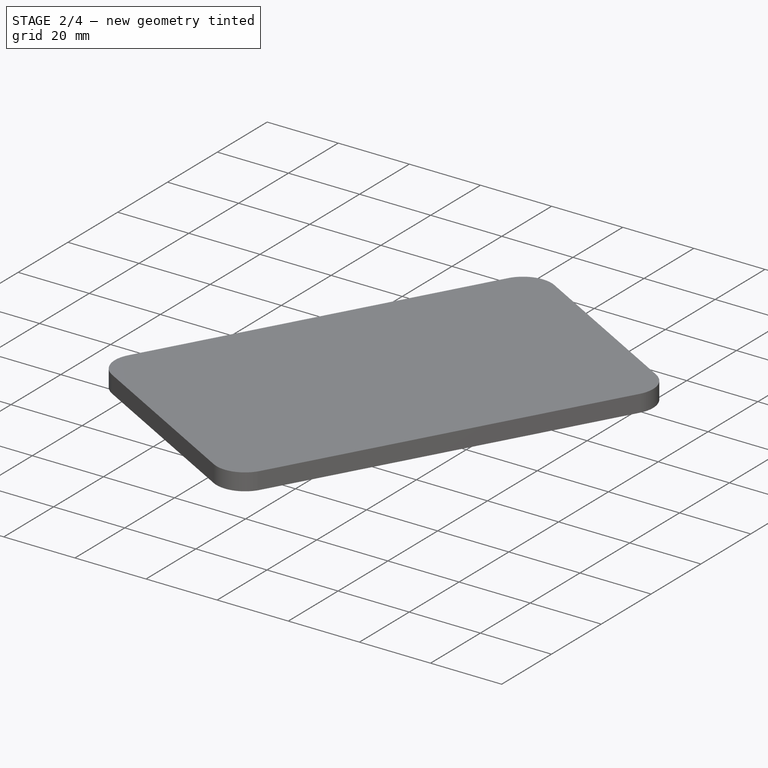
[diagram: stage 2 of 4 — iso view after this stage's code; geometry added in this stage tinted green]
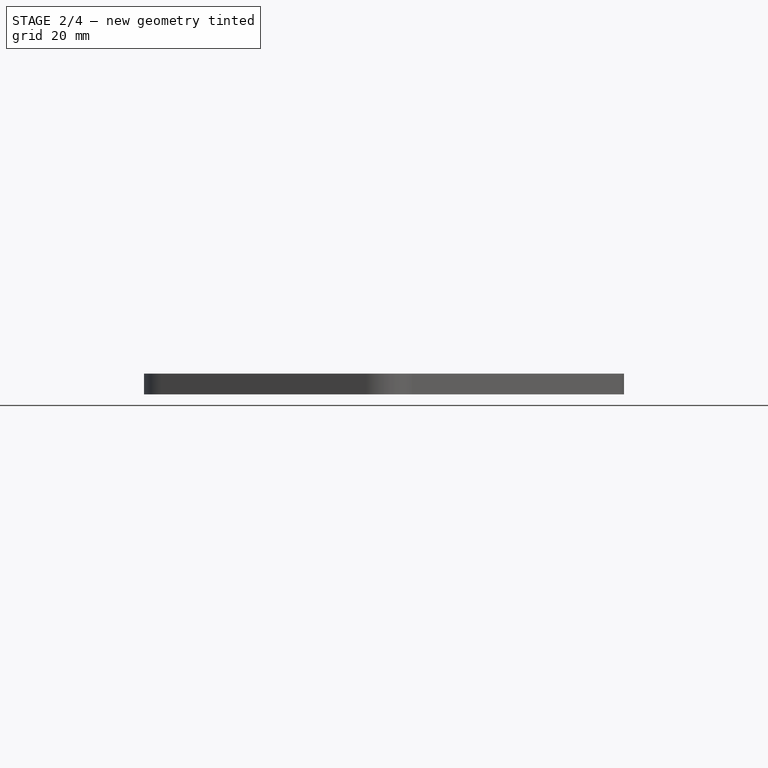
[diagram: stage 2 of 4 — front view after this stage's code; geometry added in this stage tinted green]
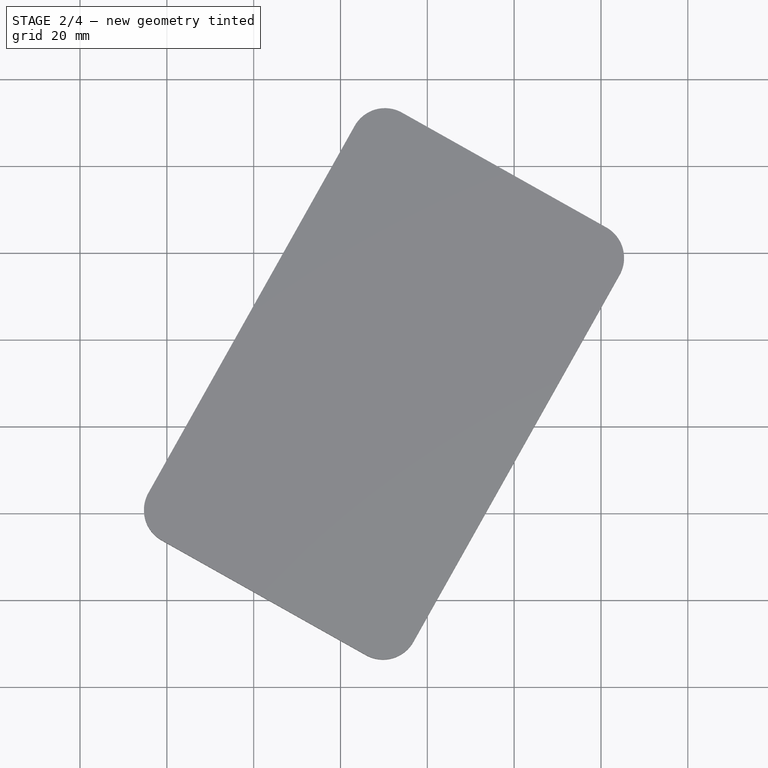
[diagram: stage 2 of 4 — top view after this stage's code; geometry added in this stage tinted green]
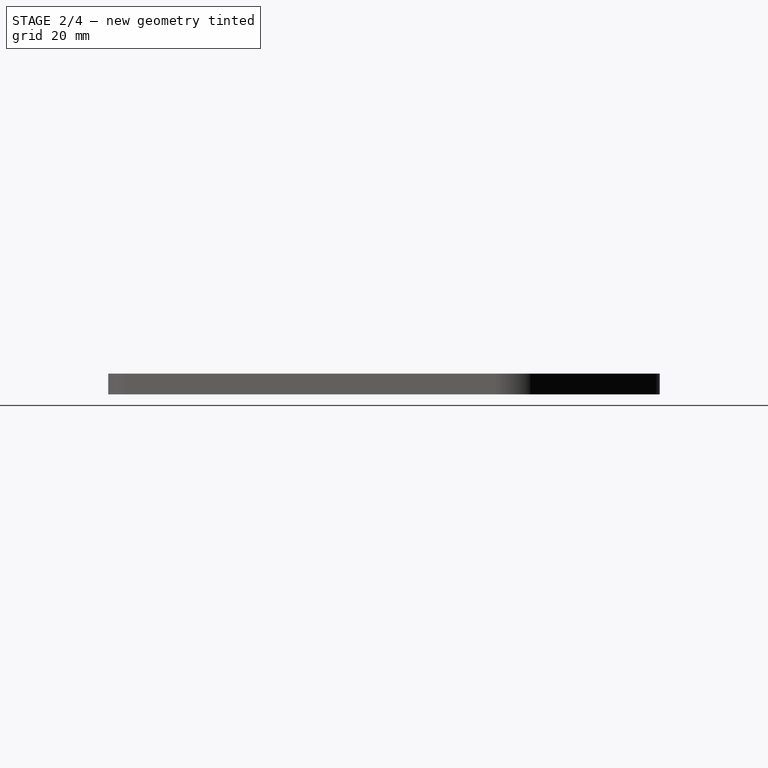
[diagram: stage 2 of 4 — right view after this stage's code; geometry added in this stage tinted green]
FEATURE [Sketcher::SketchObject] Sketch014
  ExternalGeometry = -> [Sketch]
  FullyConstrained = true
  MapMode = 5
  Support = -> [XY_Plane002]
  expr: Constraints[33] = <<vars>>.total_card_angle
  expr: Constraints[57] = <<vars>>.card_angle * 3
  sketch-geometry (28):
    g0: ArcOfCircle CenterX=2.17523 CenterY=7.95414 CenterZ=0 NormalX=0 NormalY=0 NormalZ=1 AngleXU=0 Radius=3 StartAngle=2.62967 EndAngle=4.20047
    g1: LineSegment StartX=-0.440184 StartY=9.42371 StartZ=0 EndX=38.6502 EndY=78.9937 EndZ=0
    g2: ArcOfCircle CenterX=41.2656 CenterY=77.5241 CenterZ=0 NormalX=0 NormalY=0 NormalZ=1 AngleXU=0 Radius=3 StartAngle=1.05887 EndAngle=2.62967
    g3: LineSegment StartX=42.7352 StartY=80.1395 StartZ=0 EndX=84.669 EndY=56.5775 EndZ=0
    g4: ArcOfCircle CenterX=83.1994 CenterY=53.9621 CenterZ=0 NormalX=0 NormalY=0 NormalZ=1 AngleXU=0 Radius=3 StartAngle=5.77126 EndAngle=7.34206
    g5: LineSegment StartX=85.8148 StartY=52.4925 StartZ=0 EndX=46.7244 EndY=-17.0774 EndZ=0
    g6: ArcOfCircle CenterX=44.109 CenterY=-15.6079 CenterZ=0 NormalX=0 NormalY=0 NormalZ=1 AngleXU=0 Radius=3 StartAngle=4.20047 EndAngle=5.77126
    g7: LineSegment StartX=42.6394 StartY=-18.2233 StartZ=0 EndX=0.705665 EndY=5.33873 EndZ=0
    g8: GeomPoint X=-1.90975 Y=6.80829 Z=0
    g9: GeomPoint X=87.2844 Y=55.108 Z=0
    g10: ArcOfCircle CenterX=0 CenterY=0 CenterZ=0 NormalX=0 NormalY=0 NormalZ=1 AngleXU=0 Radius=5 StartAngle=1.05888 EndAngle=1.36603
    g11: ArcOfCircle CenterX=-5.86e-14 CenterY=0 CenterZ=0 NormalX=0 NormalY=0 NormalZ=1 AngleXU=0 Radius=102.167 StartAngle=0.575382 EndAngle=0.882535
    g12: ArcOfCircle CenterX=83.1994 CenterY=53.9621 CenterZ=0 NormalX=0 NormalY=0 NormalZ=1 AngleXU=0 Radius=3 StartAngle=5.77126 EndAngle=6.85857
    g13: LineSegment StartX=42.6394 StartY=-18.2233 StartZ=0 EndX=2.44925 EndY=4.35903 EndZ=0
    g14: ArcOfCircle CenterX=15.8951 CenterY=86.3724 CenterZ=0 NormalX=0 NormalY=0 NormalZ=1 AngleXU=0 Radius=3 StartAngle=1.36603 EndAngle=2.93682
    g15: LineSegment StartX=16.5052 StartY=89.3097 StartZ=0 EndX=63.6003 EndY=79.529 EndZ=0
    g16: ArcOfCircle CenterX=62.9902 CenterY=76.5916 CenterZ=0 NormalX=0 NormalY=0 NormalZ=1 AngleXU=0 Radius=3 StartAngle=6.07842 EndAngle=7.64921
    g17: LineSegment StartX=65.9276 StartY=75.9816 StartZ=0 EndX=49.7009 EndY=-2.15119 EndZ=0
    g18: ArcOfCircle CenterX=46.7636 CenterY=-1.54116 CenterZ=0 NormalX=0 NormalY=0 NormalZ=1 AngleXU=0 Radius=3 StartAngle=4.50762 EndAngle=6.07842
    g19: LineSegment StartX=46.1536 StartY=-4.47849 StartZ=0 EndX=-0.94151 EndY=5.30222 EndZ=0
    g20: ArcOfCircle CenterX=-0.331486 CenterY=8.23955 CenterZ=0 NormalX=0 NormalY=0 NormalZ=1 AngleXU=0 Radius=3 StartAngle=2.93682 EndAngle=4.50762
    g21: LineSegment StartX=-3.26881 StartY=8.84957 StartZ=0 EndX=12.9578 EndY=86.9824 EndZ=0
    g22: GeomPoint X=13.5678 Y=89.9197 Z=0
    g23: GeomPoint X=49.0909 Y=-5.08851 Z=0
    g24: LineSegment StartX=63.6003 StartY=79.529 StartZ=0 EndX=1.81854 EndY=92.3598 EndZ=0
    g25: LineSegment StartX=1.81854 StartY=92.3598 StartZ=0 EndX=-15.6281 EndY=8.35234 EndZ=0
    g26: LineSegment StartX=-15.6281 StartY=8.35234 StartZ=0 EndX=1.01671 EndY=4.89554 EndZ=0
    g27: ArcOfCircle CenterX=62.9902 CenterY=76.5916 CenterZ=0 NormalX=0 NormalY=0 NormalZ=1 AngleXU=0 Radius=3 StartAngle=0.882535 EndAngle=1.36603
  constraints (69):
    c: Tangent(g0,g1) = 1.5708
    c: Tangent(g1,g2) = 1.5708
    c: Tangent(g2,g3) = 1.5708
    c: Tangent(g3,g4) = 1.5708
    c: Tangent(g4,g5) = 1.5708
    c: Tangent(g5,g6) = 1.5708
    c: Tangent(g6,g7) = 1.5708
    c: Tangent(g7,g0) = 1.5708
    c: Equal(g0,g2)
    c: Equal(g2,g4)
    c: Equal(g4,g6)
    c: PointOnObject(g8,g1)
    c: PointOnObject(g8,g7)
    c: PointOnObject(g9,g3)
    c: PointOnObject(g9,g5)
    c: Perpendicular(g3,g1)
    c: Perpendicular(g5,g3)
    c: Perpendicular(g7,g5)
    c: Equal(g2,g-5)
    c: Equal(g-4,g1)
    c: Equal(g3,g-6)
    c: Tangent(g7,g-3)
    c: Tangent(g1,g-3)
    c: Coincident(g10,g-3)
    c: PointOnObject(g10,g-3)
    c: PointOnObject(g11,g4)
    c: Coincident(g12,g5)
    c: Tangent(g12,g11) = -1.5708
    c: PointOnObject(g10,g7)
    c: PointOnObject(g11,g-1)
    c: Equal(g12,g4)
    c: Coincident(g13,g6)
    c: Coincident(g13,g10)
    c: Angle(g1,g-4) = 0.511923
    c: Tangent(g14,g15) = 1.5708
    c: Tangent(g15,g16) = 1.5708
    c: Tangent(g16,g17) = 1.5708
    c: Tangent(g17,g18) = 1.5708
    c: Tangent(g18,g19) = 1.5708
    c: Tangent(g19,g20) = 1.5708
    c: Tangent(g20,g21) = 1.5708
    c: Tangent(g21,g14) = 1.5708
    c: Equal(g14,g16)
    c: Equal(g16,g18)
    c: Equal(g18,g20)
    c: PointOnObject(g22,g15)
    c: PointOnObject(g22,g21)
    c: PointOnObject(g23,g17)
    c: PointOnObject(g23,g19)
    c: Perpendicular(g17,g15)
    c: Perpendicular(g19,g17)
    c: Perpendicular(g19,g21)
    c: Equal(g2,g14)
    c: Equal(g15,g3)
    c: Equal(g21,g1)
    c: Tangent(g19,g-3)
    c: Tangent(g21,g-3)
    c: Angle(g1,g21) = 0.307154
    c: Coincident(g24,g15)
    c: Coincident(g25,g24)
    c: Coincident(g26,g25)
    c: Tangent(g26,g10) = 1.5708
    c: PointOnObject(g19,g26)
    c: Distance(g19,g25) = 15
    c: Perpendicular(g25,g26)
    c: Perpendicular(g25,g24)
    c: Tangent(g27,g11) = -1.5708
    c: Tangent(g27,g24) = -1.5708
    c: Equal(g16,g27)
FEATURE [Sketcher::SketchObject] Sketch015
  ExternalGeometry = -> [Sketch]
  FullyConstrained = true
  MapMode = 5
  Support = -> [XY_Plane002]
  expr: Constraints[33] = <<vars>>.total_card_angle
  expr: Constraints[57] = <<vars>>.card_angle * 2
  sketch-geometry (28):
    g0: ArcOfCircle CenterX=2.17523 CenterY=7.95414 CenterZ=0 NormalX=0 NormalY=0 NormalZ=1 AngleXU=0 Radius=3 StartAngle=2.62967 EndAngle=4.20047
    g1: LineSegment StartX=-0.440184 StartY=9.42371 StartZ=0 EndX=38.6502 EndY=78.9937 EndZ=0
    g2: ArcOfCircle CenterX=41.2656 CenterY=77.5241 CenterZ=0 NormalX=0 NormalY=0 NormalZ=1 AngleXU=0 Radius=3 StartAngle=1.05887 EndAngle=2.62967
    g3: LineSegment StartX=42.7352 StartY=80.1395 StartZ=0 EndX=84.669 EndY=56.5775 EndZ=0
    g4: ArcOfCircle CenterX=83.1994 CenterY=53.9621 CenterZ=0 NormalX=0 NormalY=0 NormalZ=1 AngleXU=0 Radius=3 StartAngle=5.77126 EndAngle=7.34206
    g5: LineSegment StartX=85.8148 StartY=52.4925 StartZ=0 EndX=46.7244 EndY=-17.0774 EndZ=0
    g6: ArcOfCircle CenterX=44.109 CenterY=-15.6079 CenterZ=0 NormalX=0 NormalY=0 NormalZ=1 AngleXU=0 Radius=3 StartAngle=4.20047 EndAngle=5.77126
    g7: LineSegment StartX=42.6394 StartY=-18.2233 StartZ=0 EndX=0.705665 EndY=5.33873 EndZ=0
    g8: GeomPoint X=-1.90975 Y=6.80829 Z=0
    g9: GeomPoint X=87.2844 Y=55.108 Z=0
    g10: ArcOfCircle CenterX=0 CenterY=0 CenterZ=0 NormalX=0 NormalY=0 NormalZ=1 AngleXU=0 Radius=5 StartAngle=1.05888 EndAngle=1.26364
    g11: ArcOfCircle CenterX=1.552e-13 CenterY=0 CenterZ=0 NormalX=0 NormalY=0 NormalZ=1 AngleXU=0 Radius=102.167 StartAngle=0.575382 EndAngle=0.780151
    g12: ArcOfCircle CenterX=83.1994 CenterY=53.9621 CenterZ=0 NormalX=0 NormalY=0 NormalZ=1 AngleXU=0 Radius=3 StartAngle=5.77126 EndAngle=6.85857
    g13: LineSegment StartX=42.6394 StartY=-18.2233 StartZ=0 EndX=2.44925 EndY=4.35903 EndZ=0
    g14: ArcOfCircle CenterX=24.6397 CenterY=84.2955 CenterZ=0 NormalX=0 NormalY=0 NormalZ=1 AngleXU=0 Radius=3 StartAngle=1.26364 EndAngle=2.83444
    g15: LineSegment StartX=25.5467 StartY=87.1551 StartZ=0 EndX=71.3955 EndY=72.6122 EndZ=0
    g16: ArcOfCircle CenterX=70.4885 CenterY=69.7526 CenterZ=0 NormalX=0 NormalY=0 NormalZ=1 AngleXU=0 Radius=3 StartAngle=5.97603 EndAngle=7.54683
    g17: LineSegment StartX=73.3481 StartY=68.8456 StartZ=0 EndX=49.2208 EndY=-7.21965 EndZ=0
    g18: ArcOfCircle CenterX=46.3612 CenterY=-6.31261 CenterZ=0 NormalX=0 NormalY=0 NormalZ=1 AngleXU=0 Radius=3 StartAngle=4.40524 EndAngle=5.97603
    g19: LineSegment StartX=45.4542 StartY=-9.1722 StartZ=0 EndX=-0.394662 EndY=5.37068 EndZ=0
    g20: ArcOfCircle CenterX=0.512379 CenterY=8.23028 CenterZ=0 NormalX=0 NormalY=0 NormalZ=1 AngleXU=0 Radius=3 StartAngle=2.83444 EndAngle=4.40524
    g21: LineSegment StartX=-2.34721 StartY=9.13732 StartZ=0 EndX=21.7801 EndY=85.2025 EndZ=0
    g22: GeomPoint X=22.6871 Y=88.0621 Z=0
    g23: GeomPoint X=48.3138 Y=-10.0792 Z=0
    g24: LineSegment StartX=71.3955 StartY=72.6122 StartZ=0 EndX=11.2487 EndY=91.6903 EndZ=0
    g25: LineSegment StartX=11.2487 StartY=91.6903 StartZ=0 EndX=-14.6926 EndY=9.90589 EndZ=0
    g26: LineSegment StartX=-14.6926 StartY=9.90589 StartZ=0 EndX=1.51173 EndY=4.76599 EndZ=0
    g27: ArcOfCircle CenterX=70.4885 CenterY=69.7526 CenterZ=0 NormalX=0 NormalY=0 NormalZ=1 AngleXU=0 Radius=3 StartAngle=0.780151 EndAngle=1.26364
  constraints (69):
    c: Tangent(g0,g1) = 1.5708
    c: Tangent(g1,g2) = 1.5708
    c: Tangent(g2,g3) = 1.5708
    c: Tangent(g3,g4) = 1.5708
    c: Tangent(g4,g5) = 1.5708
    c: Tangent(g5,g6) = 1.5708
    c: Tangent(g6,g7) = 1.5708
    c: Tangent(g7,g0) = 1.5708
    c: Equal(g0,g2)
    c: Equal(g2,g4)
    c: Equal(g4,g6)
    c: PointOnObject(g8,g1)
    c: PointOnObject(g8,g7)
    c: PointOnObject(g9,g3)
    c: PointOnObject(g9,g5)
    c: Perpendicular(g3,g1)
    c: Perpendicular(g5,g3)
    c: Perpendicular(g7,g5)
    c: Equal(g2,g-5)
    c: Equal(g-4,g1)
    c: Equal(g3,g-6)
    c: Tangent(g7,g-3)
    c: Tangent(g1,g-3)
    c: Coincident(g10,g-3)
    c: PointOnObject(g10,g-3)
    c: PointOnObject(g11,g4)
    c: Coincident(g12,g5)
    c: Tangent(g12,g11) = -1.5708
    c: PointOnObject(g10,g7)
    c: PointOnObject(g11,g-1)
    c: Equal(g12,g4)
    c: Coincident(g13,g6)
    c: Coincident(g13,g10)
    c: Angle(g1,g-4) = 0.511923
    c: Tangent(g14,g15) = 1.5708
    c: Tangent(g15,g16) = 1.5708
    c: Tangent(g16,g17) = 1.5708
    c: Tangent(g17,g18) = 1.5708
    c: Tangent(g18,g19) = 1.5708
    c: Tangent(g19,g20) = 1.5708
    c: Tangent(g20,g21) = 1.5708
    c: Tangent(g21,g14) = 1.5708
    c: Equal(g14,g16)
    c: Equal(g16,g18)
    c: Equal(g18,g20)
    c: PointOnObject(g22,g15)
    c: PointOnObject(g22,g21)
    c: PointOnObject(g23,g17)
    c: PointOnObject(g23,g19)
    c: Perpendicular(g17,g15)
    c: Perpendicular(g19,g17)
    c: Perpendicular(g19,g21)
    c: Equal(g2,g14)
    c: Equal(g15,g3)
    c: Equal(g21,g1)
    c: Tangent(g19,g-3)
    c: Tangent(g21,g-3)
    c: Angle(g1,g21) = 0.204769
    c: Coincident(g24,g15)
    c: Coincident(g25,g24)
    c: Coincident(g26,g25)
    c: Tangent(g26,g10) = 1.5708
    c: PointOnObject(g19,g26)
    c: Distance(g19,g25) = 15
    c: Perpendicular(g25,g26)
    c: Perpendicular(g25,g24)
    c: Tangent(g27,g11) = -1.5708
    c: Tangent(g27,g24) = -1.5708
    c: Equal(g16,g27)
FEATURE [Sketcher::SketchObject] Sketch016
  ExternalGeometry = -> [Sketch]
  FullyConstrained = true
  MapMode = 5
  Support = -> [XY_Plane002]
  expr: Constraints[33] = <<vars>>.total_card_angle
  expr: Constraints[57] = <<vars>>.card_angle * 1
  sketch-geometry (28):
    g0: ArcOfCircle CenterX=2.17523 CenterY=7.95414 CenterZ=0 NormalX=0 NormalY=0 NormalZ=1 AngleXU=0 Radius=3 StartAngle=2.62967 EndAngle=4.20047
    g1: LineSegment StartX=-0.440184 StartY=9.42371 StartZ=0 EndX=38.6502 EndY=78.9937 EndZ=0
    g2: ArcOfCircle CenterX=41.2656 CenterY=77.5241 CenterZ=0 NormalX=0 NormalY=0 NormalZ=1 AngleXU=0 Radius=3 StartAngle=1.05887 EndAngle=2.62967
    g3: LineSegment StartX=42.7352 StartY=80.1395 StartZ=0 EndX=84.669 EndY=56.5775 EndZ=0
    g4: ArcOfCircle CenterX=83.1994 CenterY=53.9621 CenterZ=0 NormalX=0 NormalY=0 NormalZ=1 AngleXU=0 Radius=3 StartAngle=5.77126 EndAngle=7.34206
    g5: LineSegment StartX=85.8148 StartY=52.4925 StartZ=0 EndX=46.7244 EndY=-17.0774 EndZ=0
    g6: ArcOfCircle CenterX=44.109 CenterY=-15.6079 CenterZ=0 NormalX=0 NormalY=0 NormalZ=1 AngleXU=0 Radius=3 StartAngle=4.20047 EndAngle=5.77126
    g7: LineSegment StartX=42.6394 StartY=-18.2233 StartZ=0 EndX=0.705665 EndY=5.33873 EndZ=0
    g8: GeomPoint X=-1.90975 Y=6.80829 Z=0
    g9: GeomPoint X=87.2844 Y=55.108 Z=0
    g10: ArcOfCircle CenterX=0 CenterY=0 CenterZ=0 NormalX=0 NormalY=0 NormalZ=1 AngleXU=0 Radius=5 StartAngle=1.05888 EndAngle=1.16126
    g11: ArcOfCircle CenterX=-6.92e-14 CenterY=0 CenterZ=0 NormalX=0 NormalY=0 NormalZ=1 AngleXU=0 Radius=102.167 StartAngle=0.575382 EndAngle=0.677766
    g12: ArcOfCircle CenterX=83.1994 CenterY=53.9621 CenterZ=0 NormalX=0 NormalY=0 NormalZ=1 AngleXU=0 Radius=3 StartAngle=5.77126 EndAngle=6.85857
    g13: LineSegment StartX=42.6394 StartY=-18.2233 StartZ=0 EndX=2.44926 EndY=4.35903 EndZ=0
    g14: ArcOfCircle CenterX=33.1261 CenterY=81.3357 CenterZ=0 NormalX=0 NormalY=0 NormalZ=1 AngleXU=0 Radius=3 StartAngle=1.16126 EndAngle=2.73205
    g15: LineSegment StartX=34.3207 StartY=84.0876 StartZ=0 EndX=78.443 EndY=64.9349 EndZ=0
    g16: ArcOfCircle CenterX=77.2485 CenterY=62.183 CenterZ=0 NormalX=0 NormalY=0 NormalZ=1 AngleXU=0 Radius=3 StartAngle=5.87365 EndAngle=7.44444
    g17: LineSegment StartX=80.0004 StartY=60.9884 StartZ=0 EndX=48.2251 EndY=-12.2125 EndZ=0
    g18: ArcOfCircle CenterX=45.4732 CenterY=-11.0179 CenterZ=0 NormalX=0 NormalY=0 NormalZ=1 AngleXU=0 Radius=3 StartAngle=4.30285 EndAngle=5.87365
    g19: LineSegment StartX=44.2787 StartY=-13.7698 StartZ=0 EndX=0.15632 EndY=5.3829 EndZ=0
    g20: ArcOfCircle CenterX=1.35088 CenterY=8.13481 CenterZ=0 NormalX=0 NormalY=0 NormalZ=1 AngleXU=0 Radius=3 StartAngle=2.73205 EndAngle=4.30285
    g21: LineSegment StartX=-1.40104 StartY=9.32937 StartZ=0 EndX=30.3742 EndY=82.5303 EndZ=0
    g22: GeomPoint X=31.5688 Y=85.2822 Z=0
    g23: GeomPoint X=47.0306 Y=-14.9644 Z=0
    g24: LineSegment StartX=78.443 StartY=64.9349 StartZ=0 EndX=20.5611 EndY=90.0604 EndZ=0
    g25: LineSegment StartX=20.5611 StartY=90.0604 StartZ=0 EndX=-13.6033 EndY=11.3557 EndZ=0
    g26: LineSegment StartX=-13.6033 StartY=11.3557 StartZ=0 EndX=1.99093 EndY=4.58652 EndZ=0
    g27: ArcOfCircle CenterX=77.2485 CenterY=62.183 CenterZ=0 NormalX=0 NormalY=0 NormalZ=1 AngleXU=0 Radius=3 StartAngle=0.677766 EndAngle=1.16126
  constraints (69):
    c: Tangent(g0,g1) = 1.5708
    c: Tangent(g1,g2) = 1.5708
    c: Tangent(g2,g3) = 1.5708
    c: Tangent(g3,g4) = 1.5708
    c: Tangent(g4,g5) = 1.5708
    c: Tangent(g5,g6) = 1.5708
    c: Tangent(g6,g7) = 1.5708
    c: Tangent(g7,g0) = 1.5708
    c: Equal(g0,g2)
    c: Equal(g2,g4)
    c: Equal(g4,g6)
    c: PointOnObject(g8,g1)
    c: PointOnObject(g8,g7)
    c: PointOnObject(g9,g3)
    c: PointOnObject(g9,g5)
    c: Perpendicular(g3,g1)
    c: Perpendicular(g5,g3)
    c: Perpendicular(g7,g5)
    c: Equal(g2,g-5)
    c: Equal(g-4,g1)
    c: Equal(g3,g-6)
    c: Tangent(g7,g-3)
    c: Tangent(g1,g-3)
    c: Coincident(g10,g-3)
    c: PointOnObject(g10,g-3)
    c: PointOnObject(g11,g4)
    c: Coincident(g12,g5)
    c: Tangent(g12,g11) = -1.5708
    c: PointOnObject(g10,g7)
    c: PointOnObject(g11,g-1)
    c: Equal(g12,g4)
    c: Coincident(g13,g6)
    c: Coincident(g13,g10)
    c: Angle(g1,g-4) = 0.511923
    c: Tangent(g14,g15) = 1.5708
    c: Tangent(g15,g16) = 1.5708
    c: Tangent(g16,g17) = 1.5708
    c: Tangent(g17,g18) = 1.5708
    c: Tangent(g18,g19) = 1.5708
    c: Tangent(g19,g20) = 1.5708
    c: Tangent(g20,g21) = 1.5708
    c: Tangent(g21,g14) = 1.5708
    c: Equal(g14,g16)
    c: Equal(g16,g18)
    c: Equal(g18,g20)
    c: PointOnObject(g22,g15)
    c: PointOnObject(g22,g21)
    c: PointOnObject(g23,g17)
    c: PointOnObject(g23,g19)
    c: Perpendicular(g17,g15)
    c: Perpendicular(g19,g17)
    c: Perpendicular(g19,g21)
    c: Equal(g2,g14)
    c: Equal(g15,g3)
    c: Equal(g21,g1)
    c: Tangent(g19,g-3)
    c: Tangent(g21,g-3)
    c: Angle(g1,g21) = 0.102385
    c: Coincident(g24,g15)
    c: Coincident(g25,g24)
    c: Coincident(g26,g25)
    c: Tangent(g26,g10) = 1.5708
    c: PointOnObject(g19,g26)
    c: Distance(g19,g25) = 15
    c: Perpendicular(g25,g26)
    c: Perpendicular(g25,g24)
    c: Tangent(g27,g11) = -1.5708
    c: Tangent(g27,g24) = -1.5708
    c: Equal(g16,g27)
FEATURE [PartDesign::Pocket] Pocket002  label="Card3"
  BaseFeature = -> Pocket
  Direction = (0,0,-1)
  Length = 3.2
  Length2 = -2.4
  Profile = -> Sketch014
  ReferenceAxis = -> Sketch014 [N_Axis]
  Reversed = true
  Type = 4
  expr: Length = <<vars>>.module_separator_wall + <<vars>>.cc_thickness * 3
  expr: Length2 = -(<<vars>>.module_separator_wall + <<vars>>.cc_thickness * 2)
FEATURE [PartDesign::Pocket] Pocket003  label="Card4"
  BaseFeature = -> Pocket002
  Direction = (0,0,-1)
  Length = 4
  Length2 = -3.2
  Profile = -> Sketch015
  ReferenceAxis = -> Sketch015 [N_Axis]
  Reversed = true
  Type = 4
  expr: Length = <<vars>>.module_separator_wall + <<vars>>.cc_thickness * 4
  expr: Length2 = -(<<vars>>.module_separator_wall + <<vars>>.cc_thickness * 3)
FEATURE [PartDesign::Pocket] Pocket004  label="Card5"
  BaseFeature = -> Pocket003
  Direction = (0,0,-1)
  Length = 4.8
  Length2 = -4
  Profile = -> Sketch016
  ReferenceAxis = -> Sketch016 [N_Axis]
  Reversed = true
  Type = 4
  expr: Length = <<vars>>.module_separator_wall + <<vars>>.cc_thickness * 5
  expr: Length2 = -(<<vars>>.module_separator_wall + <<vars>>.cc_thickness * 4)
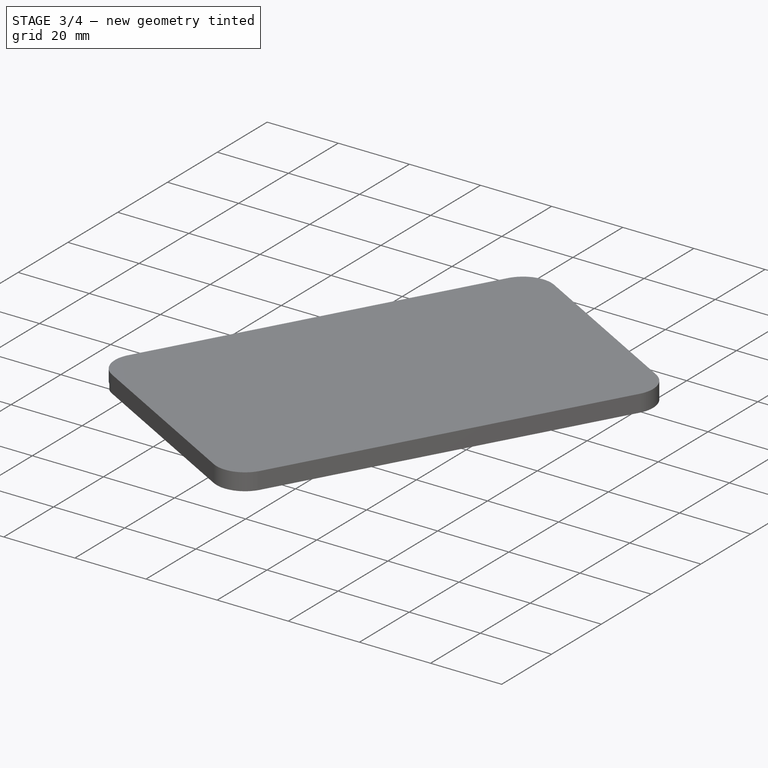
[diagram: stage 3 of 4 — iso view after this stage's code; geometry added in this stage tinted green]
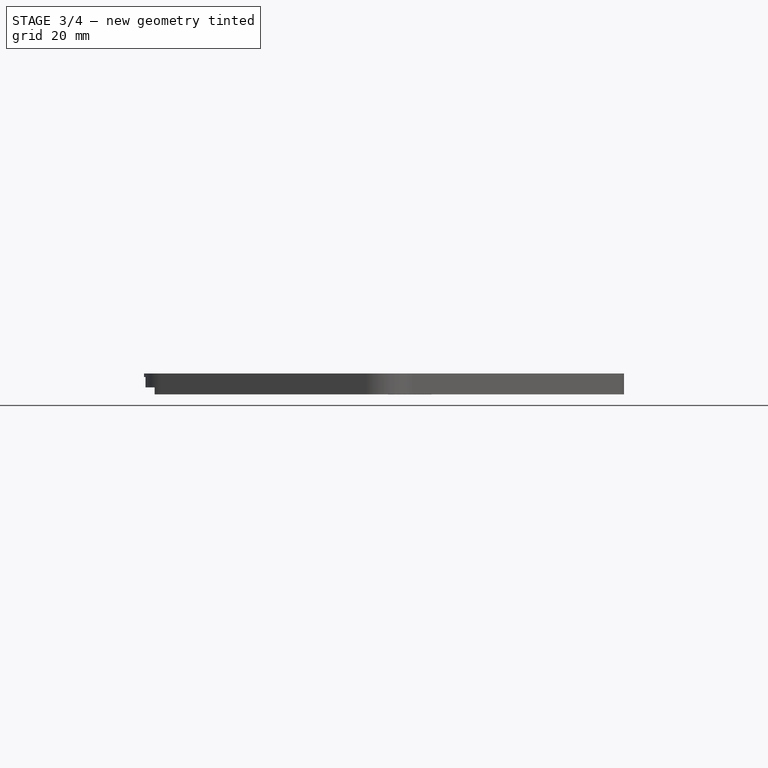
[diagram: stage 3 of 4 — front view after this stage's code; geometry added in this stage tinted green]
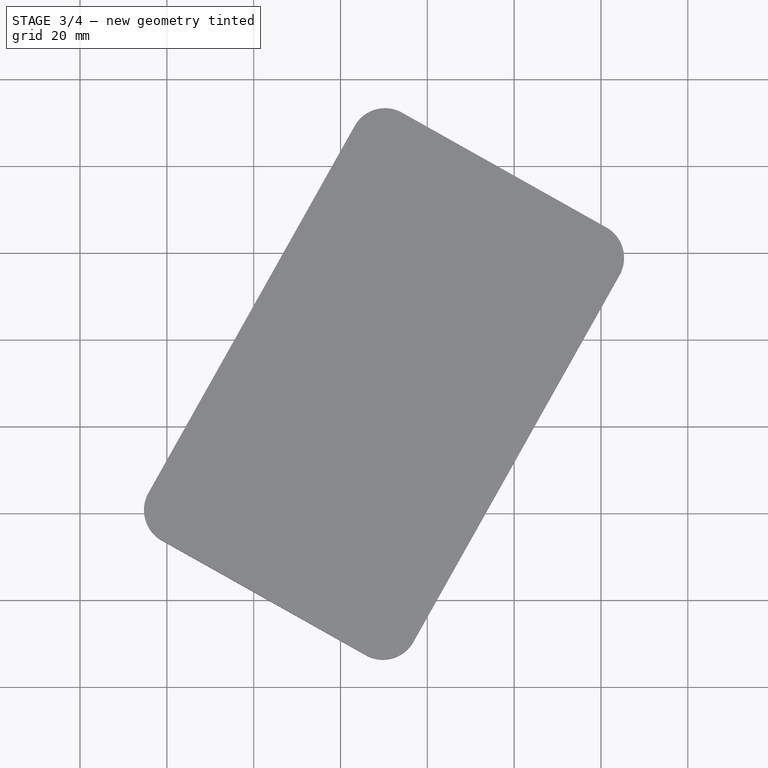
[diagram: stage 3 of 4 — top view after this stage's code; geometry added in this stage tinted green]
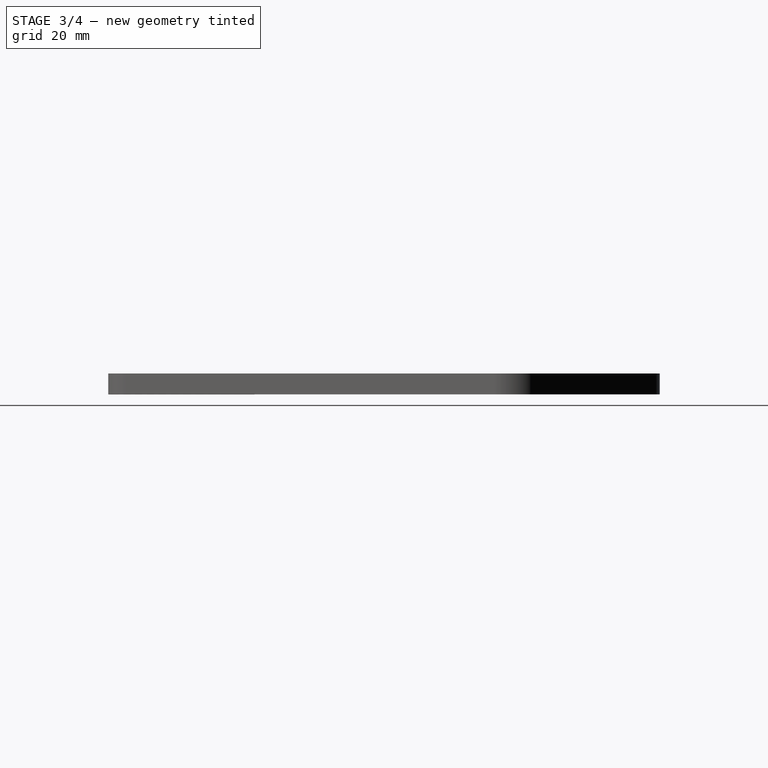
[diagram: stage 3 of 4 — right view after this stage's code; geometry added in this stage tinted green]
FEATURE [Sketcher::SketchObject] Sketch017
  ExternalGeometry = -> [Sketch]
  FullyConstrained = true
  MapMode = 5
  Support = -> [XY_Plane002]
  expr: Constraints[33] = <<vars>>.total_card_angle
  sketch-geometry (28):
    g0: ArcOfCircle CenterX=2.17523 CenterY=7.95414 CenterZ=0 NormalX=0 NormalY=0 NormalZ=1 AngleXU=0 Radius=3 StartAngle=2.62967 EndAngle=4.20047
    g1: LineSegment StartX=-0.440184 StartY=9.42371 StartZ=0 EndX=38.6502 EndY=78.9937 EndZ=0
    g2: ArcOfCircle CenterX=41.2656 CenterY=77.5241 CenterZ=0 NormalX=0 NormalY=0 NormalZ=1 AngleXU=0 Radius=3 StartAngle=1.05887 EndAngle=2.62967
    g3: LineSegment StartX=42.7352 StartY=80.1395 StartZ=0 EndX=84.669 EndY=56.5775 EndZ=0
    g4: ArcOfCircle CenterX=83.1994 CenterY=53.9621 CenterZ=0 NormalX=0 NormalY=0 NormalZ=1 AngleXU=0 Radius=3 StartAngle=5.77126 EndAngle=7.34206
    g5: LineSegment StartX=85.8148 StartY=52.4925 StartZ=0 EndX=46.7244 EndY=-17.0774 EndZ=0
    g6: ArcOfCircle CenterX=44.109 CenterY=-15.6079 CenterZ=0 NormalX=0 NormalY=0 NormalZ=1 AngleXU=0 Radius=3 StartAngle=4.20047 EndAngle=5.77126
    g7: LineSegment StartX=42.6394 StartY=-18.2233 StartZ=0 EndX=0.705665 EndY=5.33873 EndZ=0
    g8: GeomPoint X=-1.90975 Y=6.80829 Z=0
    g9: GeomPoint X=87.2844 Y=55.108 Z=0
    g10: ArcOfCircle CenterX=0 CenterY=0 CenterZ=0 NormalX=0 NormalY=0 NormalZ=1 AngleXU=0 Radius=5 StartAngle=1.05888 EndAngle=1.06062
    g11: ArcOfCircle CenterX=7.6949e-12 CenterY=0 CenterZ=0 NormalX=0 NormalY=0 NormalZ=1 AngleXU=0 Radius=102.167 StartAngle=0.575382 EndAngle=0.577127
    g12: ArcOfCircle CenterX=83.1994 CenterY=53.9621 CenterZ=0 NormalX=0 NormalY=0 NormalZ=1 AngleXU=0 Radius=3 StartAngle=5.77126 EndAngle=6.85857
    g13: LineSegment StartX=42.6394 StartY=-18.2233 StartZ=0 EndX=2.44926 EndY=4.35903 EndZ=0
    g14: ArcOfCircle CenterX=41.1303 CenterY=77.596 CenterZ=0 NormalX=0 NormalY=0 NormalZ=1 AngleXU=0 Radius=3 StartAngle=1.06062 EndAngle=2.63141
    g15: LineSegment StartX=42.5953 StartY=80.214 StartZ=0 EndX=84.5701 EndY=56.7252 EndZ=0
    g16: ArcOfCircle CenterX=83.1051 CenterY=54.1072 CenterZ=0 NormalX=0 NormalY=0 NormalZ=1 AngleXU=0 Radius=3 StartAngle=5.77301 EndAngle=7.3438
    g17: LineSegment StartX=85.7231 StartY=52.6422 StartZ=0 EndX=46.7542 EndY=-16.9959 EndZ=0
    g18: ArcOfCircle CenterX=44.1362 CenterY=-15.5309 CenterZ=0 NormalX=0 NormalY=0 NormalZ=1 AngleXU=0 Radius=3 StartAngle=4.20221 EndAngle=5.77301
    g19: LineSegment StartX=42.6712 StartY=-18.1488 StartZ=0 EndX=0.696346 EndY=5.33995 EndZ=0
    g20: ArcOfCircle CenterX=2.16134 CenterY=7.95793 CenterZ=0 NormalX=0 NormalY=0 NormalZ=1 AngleXU=0 Radius=3 StartAngle=2.63141 EndAngle=4.20221
    g21: LineSegment StartX=-0.456631 StartY=9.42292 StartZ=0 EndX=38.5123 EndY=79.061 EndZ=0
    g22: GeomPoint X=39.9773 Y=81.679 Z=0
    g23: GeomPoint X=45.2892 Y=-19.6138 Z=0
    g24: LineSegment StartX=84.5701 StartY=56.7252 StartZ=0 EndX=29.5054 EndY=87.539 EndZ=0
    g25: LineSegment StartX=29.5054 StartY=87.539 StartZ=0 EndX=-12.3935 EndY=12.6649 EndZ=0
    g26: LineSegment StartX=-12.3935 StartY=12.6649 StartZ=0 EndX=2.44166 EndY=4.36329 EndZ=0
    g27: ArcOfCircle CenterX=83.1051 CenterY=54.1072 CenterZ=0 NormalX=0 NormalY=0 NormalZ=1 AngleXU=0 Radius=3 StartAngle=0.577127 EndAngle=1.06062
  constraints (69):
    c: Tangent(g0,g1) = 1.5708
    c: Tangent(g1,g2) = 1.5708
    c: Tangent(g2,g3) = 1.5708
    c: Tangent(g3,g4) = 1.5708
    c: Tangent(g4,g5) = 1.5708
    c: Tangent(g5,g6) = 1.5708
    c: Tangent(g6,g7) = 1.5708
    c: Tangent(g7,g0) = 1.5708
    c: Equal(g0,g2)
    c: Equal(g2,g4)
    c: Equal(g4,g6)
    c: PointOnObject(g8,g1)
    c: PointOnObject(g8,g7)
    c: PointOnObject(g9,g3)
    c: PointOnObject(g9,g5)
    c: Perpendicular(g3,g1)
    c: Perpendicular(g5,g3)
    c: Perpendicular(g7,g5)
    c: Equal(g2,g-5)
    c: Equal(g-4,g1)
    c: Equal(g3,g-6)
    c: Tangent(g7,g-3)
    c: Tangent(g1,g-3)
    c: Coincident(g10,g-3)
    c: PointOnObject(g10,g-3)
    c: PointOnObject(g11,g4)
    c: Coincident(g12,g5)
    c: Tangent(g12,g11) = -1.5708
    c: PointOnObject(g10,g7)
    c: PointOnObject(g11,g-1)
    c: Equal(g12,g4)
    c: Coincident(g13,g6)
    c: Coincident(g13,g10)
    c: Angle(g1,g-4) = 0.511923
    c: Tangent(g14,g15) = 1.5708
    c: Tangent(g15,g16) = 1.5708
    c: Tangent(g16,g17) = 1.5708
    c: Tangent(g17,g18) = 1.5708
    c: Tangent(g18,g19) = 1.5708
    c: Tangent(g19,g20) = 1.5708
    c: Tangent(g20,g21) = 1.5708
    c: Tangent(g21,g14) = 1.5708
    c: Equal(g14,g16)
    c: Equal(g16,g18)
    c: Equal(g18,g20)
    c: PointOnObject(g22,g15)
    c: PointOnObject(g22,g21)
    c: PointOnObject(g23,g17)
    c: PointOnObject(g23,g19)
    c: Perpendicular(g17,g15)
    c: Perpendicular(g19,g17)
    c: Perpendicular(g19,g21)
    c: Equal(g2,g14)
    c: Equal(g15,g3)
    c: Equal(g21,g1)
    c: Tangent(g19,g-3)
    c: Tangent(g21,g-3)
    c: Angle(g1,g21) = 0.00174533
    c: Coincident(g24,g15)
    c: Coincident(g25,g24)
    c: Coincident(g26,g25)
    c: Tangent(g26,g10) = 1.5708
    c: PointOnObject(g19,g26)
    c: Distance(g19,g25) = 15
    c: Perpendicular(g25,g26)
    c: Perpendicular(g25,g24)
    c: Tangent(g27,g11) = -1.5708
    c: Tangent(g27,g24) = -1.5708
    c: Equal(g16,g27)
FEATURE [PartDesign::Pocket] Pocket005  label="Card6"
  BaseFeature = -> Pocket004
  Direction = (0,0,-1)
  Length = 5.6
  Length2 = -4.8
  Profile = -> Sketch017
  ReferenceAxis = -> Sketch017 [N_Axis]
  Reversed = true
  Type = 4
  expr: Length = <<vars>>.module_separator_wall + <<vars>>.cc_thickness * 6
  expr: Length2 = -(<<vars>>.module_separator_wall + <<vars>>.cc_thickness * 5)
FEATURE [Sketcher::SketchObject] Sketch018
  ExternalGeometry = -> [Sketch]
  FullyConstrained = false
  MapMode = 5
  Support = -> [XY_Plane002]
  sketch-geometry (9):
    g0: ArcOfCircle CenterX=0 CenterY=0 CenterZ=0 NormalX=0 NormalY=0 NormalZ=1 AngleXU=0 Radius=61 StartAngle=5.74342 EndAngle=7.44058
    g1: LineSegment StartX=-4.25112 StartY=4.68274 StartZ=0 EndX=24.5054 EndY=55.8613 EndZ=0
    g2: ArcOfCircle CenterX=0 CenterY=0 CenterZ=0 NormalX=0 NormalY=0 NormalZ=1 AngleXU=0 Radius=60 StartAngle=5.62181 EndAngle=7.44223
    g3: LineSegment StartX=-2.81469 StartY=-5.00936 StartZ=0 EndX=-2.05739 EndY=-3.66158 EndZ=0
    g4: LineSegment StartX=-2.05739 StartY=-3.66158 StartZ=0 EndX=46.7636 EndY=-31.0934 EndZ=0
    g5: ArcOfCircle CenterX=49.8007 CenterY=-25.6883 CenterZ=0 NormalX=0 NormalY=0 NormalZ=1 AngleXU=0 Radius=6.2 StartAngle=4.20047 EndAngle=5.13217
    g6: ArcOfCircle CenterX=2.72332 CenterY=0.763899 CenterZ=0 NormalX=0 NormalY=0 NormalZ=1 AngleXU=0 Radius=8 StartAngle=2.62967 EndAngle=3.94779
    g7: LineSegment StartX=45.8819 StartY=-32.6627 StartZ=0 EndX=46.7636 EndY=-31.0934 EndZ=0
    g8: LineSegment StartX=-2.05739 StartY=-3.66158 StartZ=0 EndX=-7.28821 EndY=-0.72245 EndZ=0
  constraints (24):
    c: Coincident(g0,g-1)
    c: Radius(g0) = 61  'SplitRadius2'
    c: Coincident(g1,g-3)
    c: Coincident(g1,g0)
    c: Coincident(g2,g0)
    c: PointOnObject(g2,g1)
    c: Radius(g2) = 60  'SplitRadius'
    c: Coincident(g4,g3)
    c: Coincident(g6,g3)
    c: Coincident(g5,g-4)
    c: Tangent(g5,g4) = -1.5708
    c: Coincident(g0,g5)
    c: Coincident(g7,g-4)
    c: Coincident(g7,g4)
    c: Perpendicular(g7,g4)
    c: Perpendicular(g4,g3)
    c: Equal(g6,g-3)
    c: Tangent(g6,g1) = 1.5708
    c: Distance(g7) = 1.8
    c: PointOnObject(g3,g-3)
    c: Coincident(g8,g3)
    c: PointOnObject(g8,g1)
    c: PointOnObject(g8,g4)
    c: Distance(g8) = 6
FEATURE [PartDesign::Pocket] Pocket006  label="PartSplit"
  BaseFeature = -> Pocket005
  Direction = (0,0,-1)
  Length = 5.6
  Length2 = 5
  Profile = -> Sketch018
  ReferenceAxis = -> Sketch018 [N_Axis]
  Reversed = true
  Type = 0
  expr: Length = <<vars>>.thickness - <<vars>>.module_separator_wall
FEATURE [Sketcher::SketchObject] Sketch011
  FullyConstrained = true
  MapMode = 5
  Placement = pos=(0,0,0) rot=(1,0,0;1.5708rad)
  Support = -> [XZ_Plane002]
  expr: Constraints[19] = <<vars>>.thickness / 2
  expr: Constraints[30] = Sketch018.Constraints.SplitRadius
  expr: Constraints[35] = Sketch018.Constraints.SplitRadius2
  sketch-geometry (19):
    g0: LineSegment StartX=59.8721 StartY=3.77653 StartZ=0 EndX=58.674 EndY=2.93763 EndZ=0
    g1: LineSegment StartX=59.0582 StartY=1.76019 StartZ=0 EndX=59.4879 EndY=2.18985 EndZ=0
    g2: LineSegment StartX=58.5461 StartY=2.69189 StartZ=0 EndX=58.5461 EndY=1.97232 EndZ=0
    g3: ArcOfCircle CenterX=58.8461 CenterY=2.69189 CenterZ=0 NormalX=0 NormalY=0 NormalZ=1 AngleXU=0 Radius=0.3 StartAngle=2.18166 EndAngle=3.14159
    g4: GeomPoint X=58.5461 Y=2.84806 Z=0
    g5: ArcOfCircle CenterX=58.8461 CenterY=1.97232 CenterZ=0 NormalX=0 NormalY=0 NormalZ=1 AngleXU=0 Radius=0.3 StartAngle=3.14159 EndAngle=5.49779
    g6: GeomPoint X=58.5461 Y=1.24806 Z=0
    g7: ArcOfCircle CenterX=59.7 CenterY=1.97772 CenterZ=0 NormalX=0 NormalY=0 NormalZ=1 AngleXU=0 Radius=0.3 StartAngle=2e-16 EndAngle=2.35619
    g8: GeomPoint X=60 Y=2.70199 Z=0
    g9: ArcOfCircle CenterX=59.7 CenterY=4.02228 CenterZ=0 NormalX=0 NormalY=0 NormalZ=1 AngleXU=0 Radius=0.3 StartAngle=5.32325 EndAngle=6.28319
    g10: GeomPoint X=60 Y=3.86611 Z=0
    g11: LineSegment StartX=60 StartY=4.02228 StartZ=0 EndX=60 EndY=1.97772 EndZ=0
    g12: GeomPoint X=60 Y=3 Z=0
    g13: GeomPoint X=58.5461 Y=2.3321 Z=0
    g14: LineSegment StartX=58.5461 StartY=2.3321 StartZ=0 EndX=60 EndY=3 EndZ=0
    g15: ArcOfCircle CenterX=60.1142 CenterY=1.56351 CenterZ=0 NormalX=0 NormalY=0 NormalZ=1 AngleXU=0 Radius=0.885786 StartAngle=0 EndAngle=2.35619
    g16: LineSegment StartX=61 StartY=4.8266 StartZ=0 EndX=61 EndY=1.56351 EndZ=0
    g17: ArcOfCircle CenterX=60.5 CenterY=4.8266 CenterZ=0 NormalX=0 NormalY=0 NormalZ=1 AngleXU=0 Radius=0.5 StartAngle=5.32325 EndAngle=6.28319
    g18: LineSegment StartX=60.7868 StartY=4.41702 StartZ=0 EndX=59.8721 EndY=3.77653 EndZ=0
  constraints (41):
    c: PointOnObject(g4,g0)
    c: PointOnObject(g4,g2)
    c: Tangent(g0,g3) = -1.5708
    c: Tangent(g2,g3) = -1.5708
    c: PointOnObject(g6,g1)
    c: PointOnObject(g6,g2)
    c: Tangent(g1,g5) = -1.5708
    c: Tangent(g2,g5) = -1.5708
    c: PointOnObject(g8,g1)
    c: Tangent(g1,g7) = 1.5708
    c: PointOnObject(g10,g0)
    c: Tangent(g0,g9) = 1.5708
    c: Equal(g9,g7)
    c: Equal(g5,g3)
    c: Equal(g3,g9)
    c: Tangent(g11,g7) = 1.5708
    c: Tangent(g11,g9) = 1.5708
    c: PointOnObject(g10,g11)
    c: PointOnObject(g8,g11)
    c: Symmetric(g7,g9,g12) = 3.2
    c: DistanceY(g-1,g12) = 3
    c: Radius(g9) = 0.3
    c: Symmetric(g2,g2,g13)
    c: Coincident(g14,g13)
    c: Coincident(g14,g12)
    c: Angle(g0,g1) = 0.174533
    c: Distance(g4,g6) = 1.6
    c: Distance(g14) = 1.6
    c: Vertical(g11)
    c: Vertical(g2)
    c: DistanceX(g-1,g12) = 60
    c: Angle(g0,g11) = 0.959931
    c: Vertical(g16)
    c: Tangent(g16,g15) = 1.5708
    c: Tangent(g15,g1) = 1.5708
    c: DistanceX(g-1,g15) = 61
    c: Coincident(g18,g0)
    c: Tangent(g18,g17) = 1.5708
    c: PointOnObject(g17,g0)
    c: Radius(g17) = 0.5
    c: Tangent(g17,g16) = 1.5708
FEATURE [PartDesign::Revolution] Revolution  label="SideSlide"
  Angle = 33.331
  Axis = (0,-2e-16,1)
  Base = (0,0,0)
  BaseFeature = -> Pocket006
  Profile = -> Sketch011
  ReferenceAxis = -> Sketch011 [V_Axis]
  Reversed = true
  expr: Angle = <<vars>>.total_card_angle + 4 deg
FEATURE [Sketcher::SketchObject] Sketch010
  ExternalGeometry = -> [Sketch]
  FullyConstrained = true
  MapMode = 5
  Support = -> [XY_Plane002]
  expr: Constraints[12] = <<vars>>.total_card_angle
  expr: Constraints[15] = 55 ° + <<vars>>.total_card_angle
  sketch-geometry (6):
    g0: LineSegment StartX=11.8874 StartY=-13.5616 StartZ=0 EndX=2.64776 EndY=1.61226 EndZ=0
    g1: ArcOfCircle CenterX=0 CenterY=0 CenterZ=0 NormalX=0 NormalY=0 NormalZ=1 AngleXU=0 Radius=3.1 StartAngle=0.54695 EndAngle=2.53073
    g2: LineSegment StartX=2.64776 StartY=1.61226 StartZ=0 EndX=4.27057 EndY=2.60042 EndZ=0
    g3: LineSegment StartX=-2.53937 StartY=1.77809 StartZ=0 EndX=-4.91493 EndY=-1.61457 EndZ=0
    g4: LineSegment StartX=11.8874 StartY=-13.5616 StartZ=0 EndX=-1.19552 EndY=-6.21053 EndZ=0
    g5: ArcOfCircle CenterX=2.72332 CenterY=0.763899 CenterZ=0 NormalX=0 NormalY=0 NormalZ=1 AngleXU=0 Radius=8 StartAngle=3.44347 EndAngle=4.20047
  constraints (16):
    c: PointOnObject(g0,g-4)
    c: Coincident(g1,g-3)
    c: Tangent(g1,g0) = -1.5708
    c: Coincident(g2,g0)
    c: Perpendicular(g0,g2)
    c: Distance(g2) = 1.9
    c: Coincident(g4,g0)
    c: Coincident(g4,g-5)
    c: Coincident(g5,g4)
    c: Equal(g5,g-5)
    c: Tangent(g3,g1) = -1.5708
    c: PointOnObject(g2,g-3)
    c: Angle(g0,g4) = 0.511923
    c: Coincident(g5,g3)
    c: PointOnObject(g3,g-5)
    c: Angle(g4,g3) = 1.47185
FEATURE [PartDesign::Pad] Pad001  label="PivotPad"
  BaseFeature = -> Revolution
  Direction = (0,0,1)
  Length = 6.4
  Length2 = -3.2
  Profile = -> Sketch010
  ReferenceAxis = -> Sketch010 [N_Axis]
  Type = 4
  expr: Length = <<vars>>.thickness
  expr: Length2 = -<<vars>>.thickness / 2
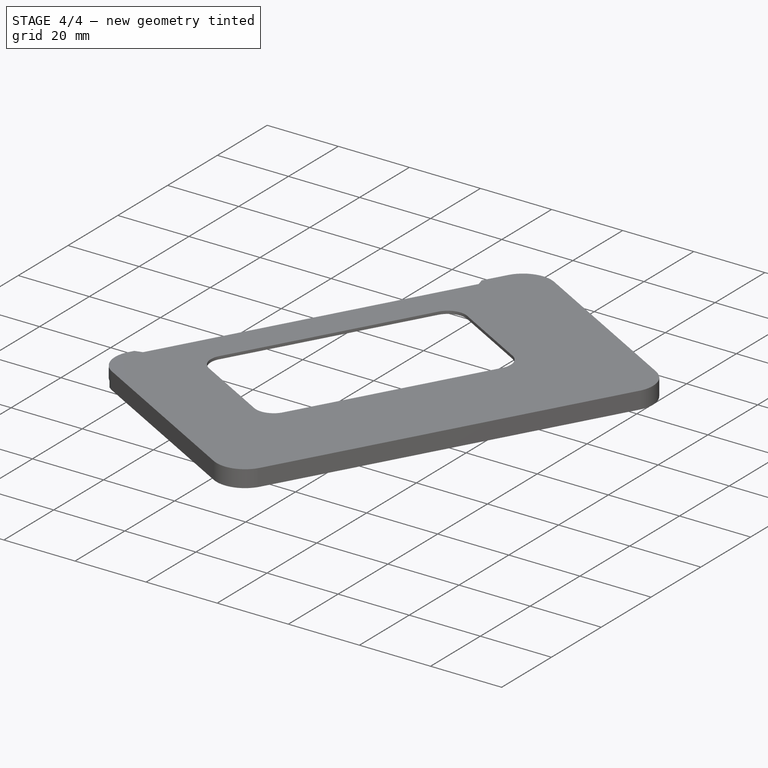
[diagram: stage 4 of 4 — iso view after this stage's code; geometry added in this stage tinted green]
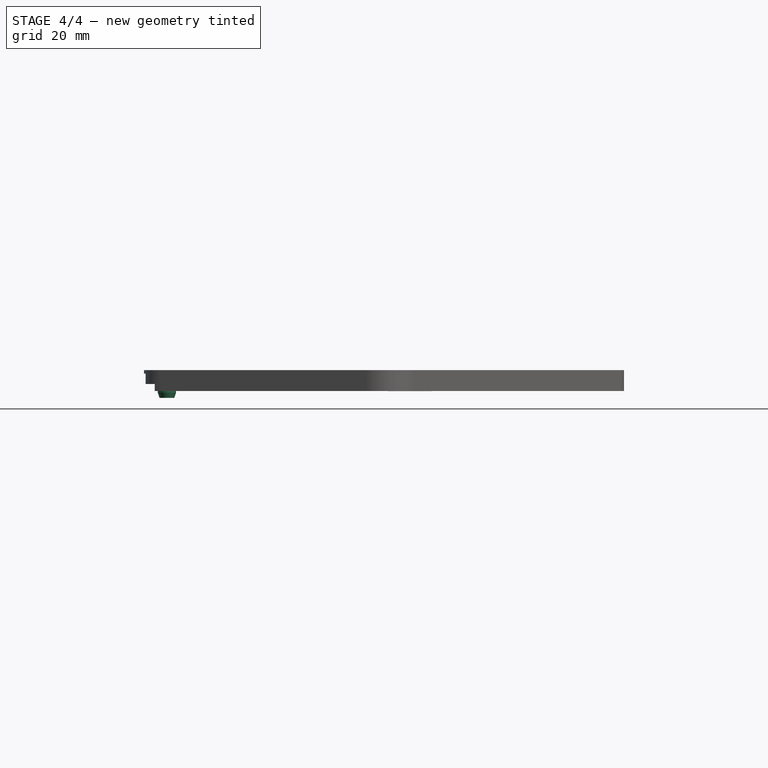
[diagram: stage 4 of 4 — front view after this stage's code; geometry added in this stage tinted green]
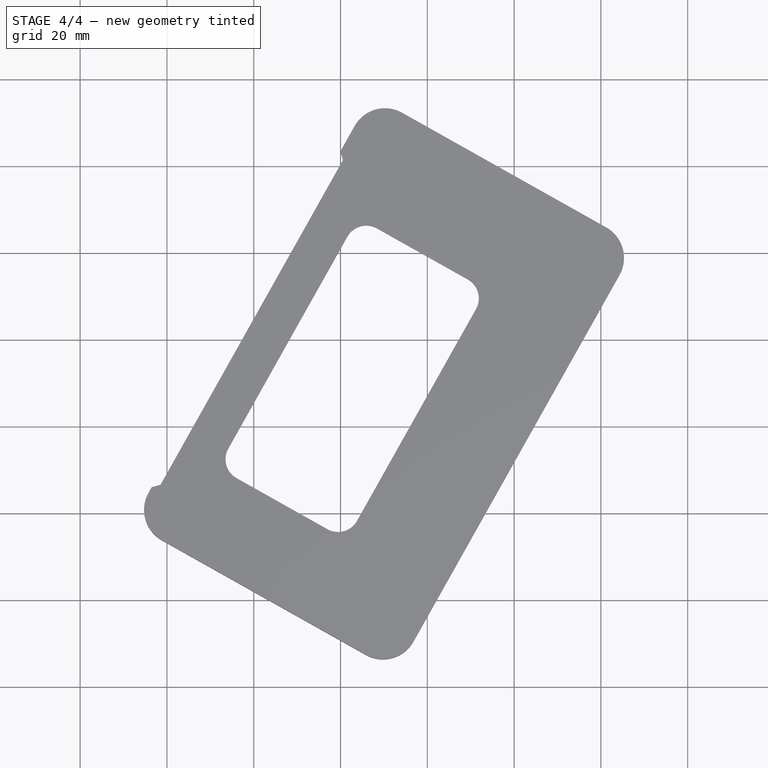
[diagram: stage 4 of 4 — top view after this stage's code; geometry added in this stage tinted green]
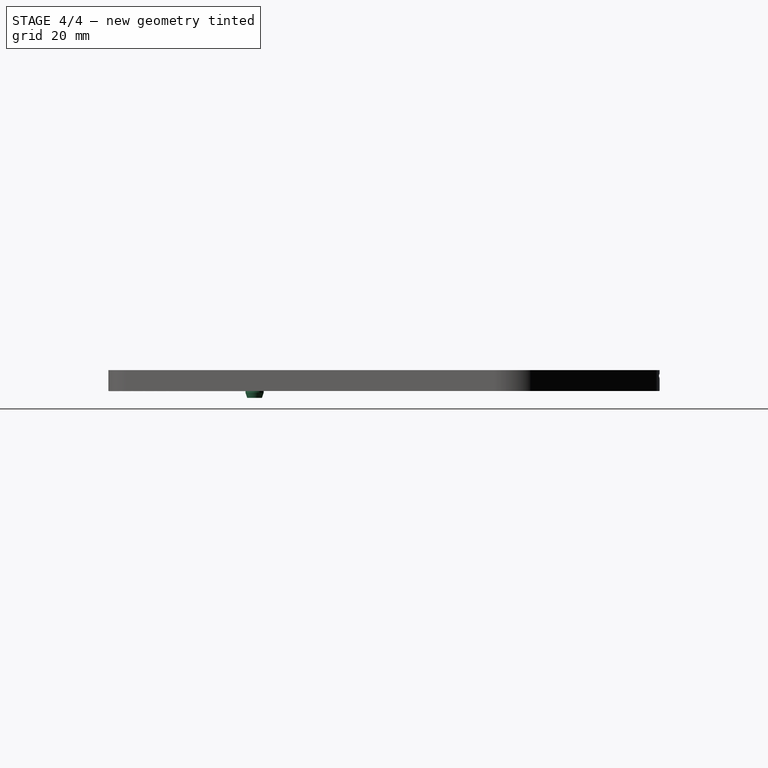
[diagram: stage 4 of 4 — right view after this stage's code; geometry added in this stage tinted green]
FEATURE [Sketcher::SketchObject] Sketch012
  FullyConstrained = false
  MapMode = 5
  Placement = pos=(0,0,0) rot=(0.57735,0.57735,0.57735;2.0944rad)
  Support = -> [YZ_Plane002]
  expr: Constraints[23] = <<vars>>.module_separator_wall
  expr: Constraints[2] = <<vars>>.module_separator_wall + <<vars>>.cc_thickness
  expr: Constraints[4] = <<vars>>.thickness
  sketch-geometry (41):
    g0: LineSegment StartX=107 StartY=1.6 StartZ=0 EndX=107 EndY=6.4 EndZ=0
    g1: LineSegment StartX=107 StartY=6.4 StartZ=0 EndX=94.9999 EndY=6.4 EndZ=0
    g2: LineSegment StartX=106.093 StartY=5.6 StartZ=0 EndX=103.907 EndY=5.6 EndZ=0
    g3: LineSegment StartX=103.554 StartY=4.74645 StartZ=0 EndX=103.854 EndY=4.44645 EndZ=0
    g4: LineSegment StartX=104 StartY=4.09289 StartZ=0 EndX=104 EndY=2.1 EndZ=0
    g5: ArcOfCircle CenterX=103.5 CenterY=2.1 CenterZ=0 NormalX=0 NormalY=0 NormalZ=1 AngleXU=0 Radius=0.5 StartAngle=4.71239 EndAngle=6.28319
    g6: GeomPoint X=104 Y=1.2 Z=0
    g7: ArcOfCircle CenterX=103.5 CenterY=4.09289 CenterZ=0 NormalX=0 NormalY=0 NormalZ=1 AngleXU=0 Radius=0.5 StartAngle=2e-16 EndAngle=0.785398
    g8: GeomPoint X=104 Y=4.3 Z=0
    g9: ArcOfCircle CenterX=103.907 CenterY=5.1 CenterZ=0 NormalX=0 NormalY=0 NormalZ=1 AngleXU=0 Radius=0.5 StartAngle=1.5708 EndAngle=3.92699
    g10: GeomPoint X=102.7 Y=5.6 Z=0
    g11: GeomPoint X=107.3 Y=5.6 Z=0
    g12: ArcOfCircle CenterX=106.093 CenterY=5.1 CenterZ=0 NormalX=0 NormalY=0 NormalZ=1 AngleXU=0 Radius=0.5 StartAngle=5.49779 EndAngle=7.85398
    g13: LineSegment StartX=103.5 StartY=1.6 StartZ=0 EndX=106.5 EndY=1.6 EndZ=0
    g14: ArcOfCircle CenterX=106.5 CenterY=2.1 CenterZ=0 NormalX=0 NormalY=0 NormalZ=1 AngleXU=0 Radius=0.5 StartAngle=3.14159 EndAngle=4.71239
    g15: LineSegment StartX=106 StartY=2.1 StartZ=0 EndX=106 EndY=4.09289 EndZ=0
    g16: LineSegment StartX=106.146 StartY=4.44645 StartZ=0 EndX=106.446 EndY=4.74645 EndZ=0
    g17: ArcOfCircle CenterX=106.5 CenterY=4.09289 CenterZ=0 NormalX=0 NormalY=0 NormalZ=1 AngleXU=0 Radius=0.5 StartAngle=2.35619 EndAngle=3.14159
    g18: GeomPoint X=106 Y=4.3 Z=0
    g19: GeomPoint X=105 Y=1.6 Z=0
    g20: GeomPoint X=105 Y=5.6 Z=0
    g21: LineSegment StartX=105 StartY=5.6 StartZ=0 EndX=105 EndY=1.6 EndZ=0
    g22: LineSegment StartX=100.33 StartY=1.6 StartZ=0 EndX=100.33 EndY=5.6 EndZ=0
    g23: LineSegment StartX=101.33 StartY=2.1 StartZ=0 EndX=101.33 EndY=4.09289 EndZ=0
    g24: LineSegment StartX=101.476 StartY=4.44645 StartZ=0 EndX=101.776 EndY=4.74645 EndZ=0
    g25: LineSegment StartX=101.423 StartY=5.6 StartZ=0 EndX=99.2371 EndY=5.6 EndZ=0
    g26: LineSegment StartX=98.8836 StartY=4.74645 StartZ=0 EndX=99.1836 EndY=4.44645 EndZ=0
    g27: LineSegment StartX=99.33 StartY=4.09289 StartZ=0 EndX=99.33 EndY=2.1 EndZ=0
    g28: ArcOfCircle CenterX=98.83 CenterY=2.1 CenterZ=0 NormalX=0 NormalY=0 NormalZ=1 AngleXU=0 Radius=0.5 StartAngle=4.71239 EndAngle=6.28319
    g29: GeomPoint X=99.33 Y=1.44851 Z=0
    g30: ArcOfCircle CenterX=98.83 CenterY=4.09289 CenterZ=0 NormalX=0 NormalY=0 NormalZ=1 AngleXU=0 Radius=0.5 StartAngle=1e-16 EndAngle=0.785398
    g31: GeomPoint X=99.33 Y=4.3 Z=0
    g32: ArcOfCircle CenterX=99.2371 CenterY=5.1 CenterZ=0 NormalX=0 NormalY=0 NormalZ=1 AngleXU=0 Radius=0.5 StartAngle=1.5708 EndAngle=3.92699
    g33: GeomPoint X=98.03 Y=5.6 Z=0
    g34: ArcOfCircle CenterX=101.423 CenterY=5.1 CenterZ=0 NormalX=0 NormalY=0 NormalZ=1 AngleXU=0 Radius=0.5 StartAngle=5.49779 EndAngle=7.85398
    g35: GeomPoint X=102.63 Y=5.6 Z=0
    g36: ArcOfCircle CenterX=101.83 CenterY=4.09289 CenterZ=0 NormalX=0 NormalY=0 NormalZ=1 AngleXU=0 Radius=0.5 StartAngle=2.35619 EndAngle=3.14159
    g37: GeomPoint X=101.33 Y=4.3 Z=0
    g38: ArcOfCircle CenterX=101.83 CenterY=2.1 CenterZ=0 NormalX=0 NormalY=0 NormalZ=1 AngleXU=0 Radius=0.5 StartAngle=3.14159 EndAngle=4.71239
    g39: GeomPoint X=101.33 Y=1.44851 Z=0
    g40: LineSegment StartX=98.83 StartY=1.6 StartZ=0 EndX=101.83 EndY=1.6 EndZ=0
  constraints (91):
    c: Vertical(g0)
    c: DistanceX(g-1,g0) = 107
    c: DistanceY(g-1,g0) = 1.6
    c: Horizontal(g1)
    c: DistanceY(g-1,g1) = 6.4
    c: Coincident(g1,g0)
    c: Horizontal(g2)
    c: Vertical(g4)
    c: PointOnObject(g6,g4)
    c: Tangent(g4,g5) = 1.5708
    c: PointOnObject(g8,g3)
    c: PointOnObject(g8,g4)
    c: Tangent(g3,g7) = 1.5708
    c: Tangent(g4,g7) = 1.5708
    c: PointOnObject(g10,g2)
    c: PointOnObject(g10,g3)
    c: Tangent(g2,g9) = -1.5708
    c: Tangent(g3,g9) = -1.5708
    c: Radius(g9) = 0.5
    c: Equal(g7,g9)
    c: Equal(g7,g5)
    c: DistanceX(g10,g11) = 4.6
    c: Angle(g3,g2) = 0.785398
    c: DistanceY(g2,g0) = 0.8
    c: Tangent(g12,g2) = -1.5708
    c: Equal(g12,g9)
    c: Horizontal(g13)
    c: Vertical(g15)
    c: PointOnObject(g18,g15)
    c: PointOnObject(g18,g16)
    c: Tangent(g15,g17) = 1.5708
    c: Tangent(g16,g17) = 1.5708
    c: Symmetric(g2,g2,g20)
    c: Symmetric(g5,g13,g19)
    c: Tangent(g13,g5) = -1.5708
    c: Tangent(g14,g13) = -1.5708
    c: Tangent(g15,g14) = 1.5708
    c: Tangent(g16,g12) = -1.5708
    c: Coincident(g21,g20)
    c: Coincident(g21,g19)
    c: Vertical(g21)
    c: Equal(g17,g7)
    c: Equal(g14,g5)
    c: Equal(g4,g15)
    c: PointOnObject(g0,g13)
    c: DistanceX(g4,g14) = 2
    c: DistanceX(g19,g0) = 2
    c: PointOnObject(g11,g16)
    c: PointOnObject(g11,g2)
    c: Vertical(g22)
    c: DistanceX(g-1,g22) = 100.33
    c: Vertical(g23)
    c: Horizontal(g25)
    c: Vertical(g27)
    c: PointOnObject(g29,g27)
    c: Tangent(g27,g28) = 1.5708
    c: PointOnObject(g31,g26)
    c: PointOnObject(g31,g27)
    c: Tangent(g26,g30) = 1.5708
    c: Tangent(g27,g30) = 1.5708
    c: PointOnObject(g33,g25)
    c: PointOnObject(g33,g26)
    c: Tangent(g25,g32) = -1.5708
    c: Tangent(g26,g32) = -1.5708
    c: PointOnObject(g35,g24)
    c: PointOnObject(g35,g25)
    c: Tangent(g24,g34) = -1.5708
    c: Tangent(g25,g34) = -1.5708
    c: PointOnObject(g37,g23)
    c: PointOnObject(g37,g24)
    c: Tangent(g23,g36) = 1.5708
    c: Tangent(g24,g36) = 1.5708
    c: PointOnObject(g39,g23)
    c: Tangent(g23,g38) = 1.5708
    c: Equal(g38,g5)
    c: Equal(g38,g28)
    c: Equal(g38,g36)
    c: Equal(g36,g34)
    c: Equal(g30,g36)
    c: Equal(g32,g34)
    c: Equal(g22,g21)
    c: Equal(g25,g2)
    c: Symmetric(g25,g25,g22)
    c: Horizontal(g40)
    c: Tangent(g40,g28) = -1.5708
    c: Tangent(g40,g38) = -1.5708
    c: Symmetric(g38,g28,g22)
    c: Parallel(g24,g16)
    c: Parallel(g26,g3)
    c: Horizontal(g19,g22)
    c: Equal(g24,g16)
FEATURE [PartDesign::Groove] Groove  label="TopSlide"
  Angle = 64.1621
  Axis = (-2e-16,3e-16,1)
  Base = (0,0,0)
  BaseFeature = -> Pad001
  Profile = -> Sketch012
  ReferenceAxis = -> Sketch012 [V_Axis]
  Reversed = true
  expr: Angle = <<vars>>.total_card_angle * 2 + 5.5 deg
FEATURE [Sketcher::SketchObject] Sketch019
  ExternalGeometry = -> [Sketch]
  FullyConstrained = true
  MapMode = 5
  Support = -> [XY_Plane002]
  sketch-geometry (16):
    g0: LineSegment StartX=39.9828 StartY=83.4066 StartZ=0 EndX=-3.51633 EndY=5.99044 EndZ=0
    g1: LineSegment StartX=-3.51633 StartY=5.99044 StartZ=0 EndX=-1.47385 EndY=6.56337 EndZ=0
    g2: LineSegment StartX=-1.47385 StartY=6.56337 StartZ=0 EndX=40.5557 EndY=81.3642 EndZ=0
    g3: LineSegment StartX=40.5557 StartY=81.3642 StartZ=0 EndX=39.9828 EndY=83.4066 EndZ=0
    g4: LineSegment StartX=-1.47385 StartY=6.56337 StartZ=0 EndX=-1.90975 EndY=6.80829 EndZ=0
    g5: ArcOfCircle CenterX=18.5097 CenterY=12.4259 CenterZ=0 NormalX=0 NormalY=0 NormalZ=1 AngleXU=0 Radius=5 StartAngle=2.62967 EndAngle=4.20047
    g6: LineSegment StartX=14.1507 StartY=14.8751 StartZ=0 EndX=41.5826 EndY=63.6962 EndZ=0
    g7: ArcOfCircle CenterX=45.9416 CenterY=61.2469 CenterZ=0 NormalX=0 NormalY=0 NormalZ=1 AngleXU=0 Radius=5 StartAngle=1.05887 EndAngle=2.62967
    g8: LineSegment StartX=48.3909 StartY=65.6059 StartZ=0 EndX=69.3142 EndY=53.8494 EndZ=0
    g9: ArcOfCircle CenterX=66.8649 CenterY=49.4904 CenterZ=0 NormalX=0 NormalY=0 NormalZ=1 AngleXU=0 Radius=5 StartAngle=5.77126 EndAngle=7.34206
    g10: LineSegment StartX=71.2239 StartY=47.0411 StartZ=0 EndX=43.7921 EndY=-1.77992 EndZ=0
    g11: ArcOfCircle CenterX=39.433 CenterY=0.669353 CenterZ=0 NormalX=0 NormalY=0 NormalZ=1 AngleXU=0 Radius=5 StartAngle=4.20047 EndAngle=5.77126
    g12: LineSegment StartX=36.9838 StartY=-3.68967 StartZ=0 EndX=16.0605 EndY=8.06684 EndZ=0
    g13: GeomPoint X=11.7014 Y=10.5161 Z=0
    g14: GeomPoint X=73.6732 Y=51.4001 Z=0
    g15: GeomPoint X=42.6873 Y=30.9581 Z=0
  constraints (39):
    c: PointOnObject(g0,g-3)
    c: PointOnObject(g0,g-3)
    c: Coincident(g1,g0)
    c: Coincident(g2,g1)
    c: Coincident(g3,g2)
    c: Coincident(g3,g0)
    c: PointOnObject(g2,g-5)
    c: Coincident(g4,g1)
    c: PointOnObject(g4,g-6)
    c: Perpendicular(g2,g4)
    c: Distance(g4) = 0.5
    c: Equal(g1,g3)
    c: Parallel(g2,g0)
    c: Angle(g1,g0) = 0.785398
    c: PointOnObject(g1,g-4)
    c: Tangent(g5,g6) = 1.5708
    c: Tangent(g6,g7) = 1.5708
    c: Tangent(g7,g8) = 1.5708
    c: Tangent(g8,g9) = 1.5708
    c: Tangent(g9,g10) = 1.5708
    c: Tangent(g10,g11) = 1.5708
    c: Tangent(g11,g12) = 1.5708
    c: Tangent(g12,g5) = 1.5708
    c: Equal(g5,g7)
    c: Equal(g7,g9)
    c: Equal(g9,g11)
    c: PointOnObject(g13,g6)
    c: PointOnObject(g13,g12)
    c: PointOnObject(g14,g8)
    c: PointOnObject(g14,g10)
    c: Perpendicular(g10,g8)
    c: Perpendicular(g12,g10)
    c: Perpendicular(g6,g12)
    c: Distance(g6,g9) = 34
    c: Distance(g7,g5) = 66
    c: Radius(g7) = 5
    c: Symmetric(g-4,g-5,g15)
    c: Symmetric(g12,g8,g15)
    c: Parallel(g6,g2)
FEATURE [PartDesign::Pocket] Pocket007  label="Window"
  BaseFeature = -> Groove
  Direction = (0,0,-1)
  Length = 5
  Length2 = 5
  Profile = -> Sketch019
  ReferenceAxis = -> Sketch019 [N_Axis]
  Reversed = true
  Type = 1
FEATURE [Sketcher::SketchObject] Sketch020
  ExternalGeometry = -> [Sketch]
  FullyConstrained = true
  MapMode = 5
  Support = -> [XY_Plane002]
  sketch-geometry (4):
    g0: ArcOfCircle CenterX=0 CenterY=0 CenterZ=0 NormalX=0 NormalY=0 NormalZ=1 AngleXU=0 Radius=102.1 StartAngle=0.583942 EndAngle=1.11982
    g1: ArcOfCircle CenterX=0 CenterY=0 CenterZ=0 NormalX=0 NormalY=0 NormalZ=1 AngleXU=0 Radius=98.5 StartAngle=0.660846 EndAngle=1.11982
    g2: LineSegment StartX=77.7631 StartY=60.4578 StartZ=0 EndX=85.1816 EndY=56.2895 EndZ=0
    g3: LineSegment StartX=42.9303 StartY=88.6524 StartZ=0 EndX=44.4993 EndY=91.8925 EndZ=0
  constraints (12):
    c: Coincident(g0,g-1)
    c: Coincident(g1,g0)
    c: PointOnObject(g1,g-3)
    c: Radius(g0) = 102.1
    c: Radius(g1) = 98.5
    c: Coincident(g2,g1)
    c: Coincident(g2,g0)
    c: PointOnObject(g0,g-3)
    c: Coincident(g3,g1)
    c: Coincident(g3,g0)
    c: PointOnObject(g0,g3)
    c: PointOnObject(g1,g-4)
FEATURE [Sketcher::SketchObject] Sketch021
  FullyConstrained = true
  MapMode = 5
  Placement = pos=(0,0,0) rot=(0.57735,0.57735,0.57735;2.0944rad)
  Support = -> [YZ_Plane002]
  expr: Constraints[17] = <<vars>>.thickness
  expr: Constraints[37] = <<vars>>.thickness / 2
  sketch-geometry (17):
    g0: LineSegment StartX=0 StartY=0 StartZ=0 EndX=0 EndY=6.4 EndZ=0
    g1: LineSegment StartX=0 StartY=6.4 StartZ=0 EndX=3 EndY=6.4 EndZ=0
    g2: LineSegment StartX=3 StartY=6.4 StartZ=0 EndX=3 EndY=3.2 EndZ=0
    g3: LineSegment StartX=3 StartY=3.2 StartZ=0 EndX=2.1 EndY=3.2 EndZ=0
    g4: LineSegment StartX=1.9 StartY=3 StartZ=0 EndX=1.9 EndY=1.8 EndZ=0
    g5: LineSegment StartX=1.9 StartY=1.8 StartZ=0 EndX=2.1 EndY=1.8 EndZ=0
    g6: LineSegment StartX=2.1 StartY=1.8 StartZ=0 EndX=2.1 EndY=1.2 EndZ=0
    g7: LineSegment StartX=2.1 StartY=1.2 StartZ=0 EndX=1.7 EndY=0 EndZ=0
    g8: LineSegment StartX=1.7 StartY=0 StartZ=0 EndX=0 EndY=0 EndZ=0
    g9: LineSegment StartX=5.2 StartY=0 StartZ=0 EndX=2.4 EndY=0 EndZ=0
    g10: LineSegment StartX=2 StartY=2 StartZ=0 EndX=2 EndY=3.2 EndZ=0
    g11: LineSegment StartX=2 StartY=3.2 StartZ=0 EndX=5.2 EndY=3.2 EndZ=0
    g12: LineSegment StartX=5.2 StartY=3.2 StartZ=0 EndX=5.2 EndY=0 EndZ=0
    g13: LineSegment StartX=2 StartY=2 StartZ=0 EndX=2.4 EndY=2 EndZ=0
    g14: LineSegment StartX=2.4 StartY=2 StartZ=0 EndX=2.4 EndY=0 EndZ=0
    g15: ArcOfCircle CenterX=2.1 CenterY=3 CenterZ=0 NormalX=0 NormalY=0 NormalZ=1 AngleXU=0 Radius=0.2 StartAngle=1.5708 EndAngle=3.14159
    g16: GeomPoint X=1.9 Y=3.2 Z=0
  constraints (49):
    c: Coincident(g0,g-1)
    c: PointOnObject(g0,g-2)
    c: Coincident(g1,g0)
    c: Horizontal(g1)
    c: Coincident(g2,g1)
    c: Vertical(g2)
    c: Coincident(g3,g2)
    c: Horizontal(g3)
    c: Vertical(g4)
    c: Coincident(g5,g4)
    c: Horizontal(g5)
    c: Coincident(g6,g5)
    c: Vertical(g6)
    c: Coincident(g7,g6)
    c: PointOnObject(g7,g-1)
    c: Coincident(g8,g7)
    c: Coincident(g8,g0)
    c: DistanceY(g0,g0) = 6.4
    c: DistanceX(g1,g1) = 3
    c: Coincident(g10,g11)
    c: Coincident(g11,g12)
    c: Coincident(g12,g9)
    c: Horizontal(g9)
    c: Horizontal(g11)
    c: Vertical(g10)
    c: Vertical(g12)
    c: PointOnObject(g9,g-1)
    c: DistanceX(g4,g10) = 0.1
    c: DistanceX(g10,g5) = 0.1
    c: Horizontal(g13)
    c: Coincident(g14,g13)
    c: Vertical(g14)
    c: DistanceY(g14,g14) = 2
    c: DistanceX(g0,g13) = 2.4
    c: Coincident(g9,g14)
    c: Coincident(g10,g13)
    c: DistanceX(g0,g10) = 2
    c: DistanceY(g0,g10) = 3.2
    c: Equal(g11,g12)
    c: DistanceY(g5,g13) = 0.2
    c: PointOnObject(g16,g11)
    c: Angle(g7,g14) = 0.321751
    c: DistanceX(g7,g10) = 0.3
    c: DistanceY(g6,g6) = 0.6
    c: PointOnObject(g16,g3)
    c: PointOnObject(g16,g4)
    c: Tangent(g3,g15) = -1.5708
    c: Tangent(g4,g15) = -1.5708
    c: Radius(g15) = 0.2
FEATURE [PartDesign::Revolution] Revolution001
  Angle = 360
  Axis = (-2e-16,3e-16,1)
  Base = (0,0,0)
  BaseFeature = -> Pocket007
  Profile = -> Sketch021
  ReferenceAxis = -> Sketch021 [V_Axis]
  Reversed = true
FEATURE [PartDesign::Body] Body
  Group = -> [LCS_001,Sketch,Sketch001,Pad,Sketch003,Pocket001,Sketch009,Pocket,Sketch014,Sketch015,Sketch016,Pocket002,Pocket003,Pocket004,Sketch017,Pocket005,Sketch018,Pocket006,Sketch011,Revolution,Sketch010,Pad001,Sketch012,Groove,Sketch019,Pocket007,Sketch020,Sketch021,Revolution001]
  Origin = -> Origin002
  Tip = -> Revolution001
FEATURE [App::Part] Part
  Group = -> [LCS_0,Body]
  Origin = -> Origin001
FEATURE [App::Part] Assembly
  AssemblyType = Part::Link
  Group = -> [LCS_Origin,Constraints,Variables,Configurations,Part]
  Origin = -> Origin
  Type = Assembly
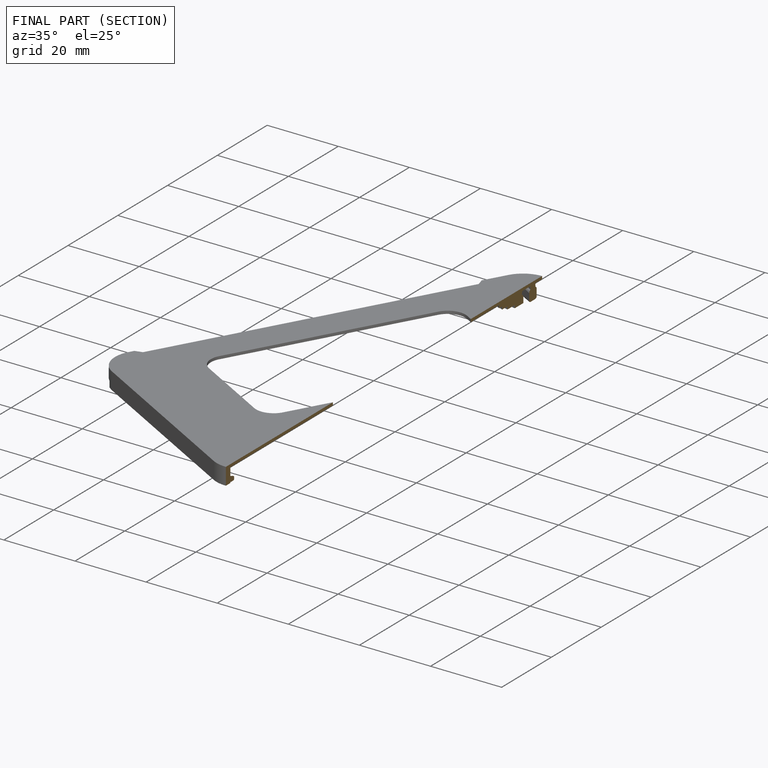
[diagram: finished part — half-section view (interior)]
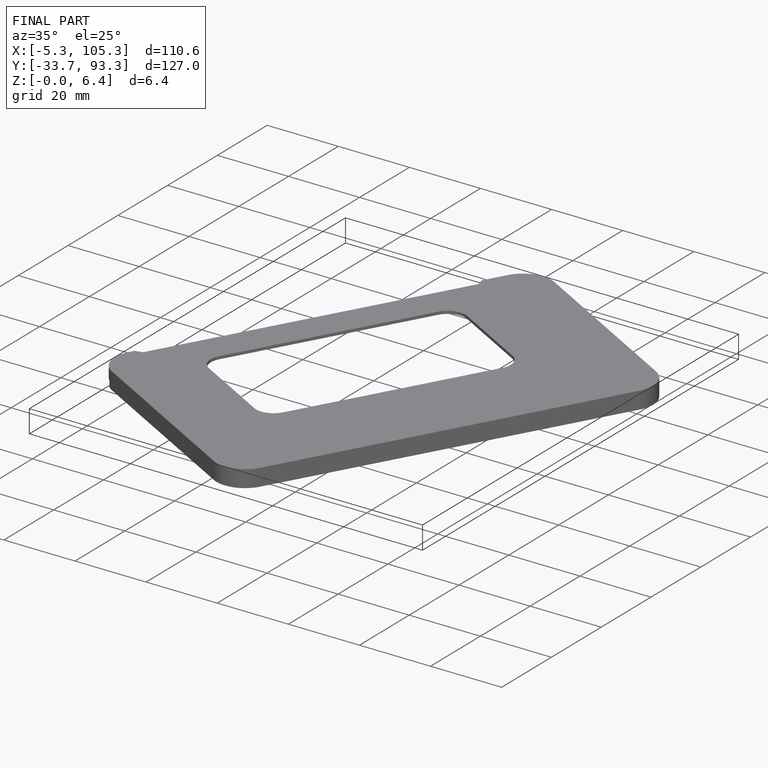
[diagram: finished part — iso view with bounding-box wireframe]
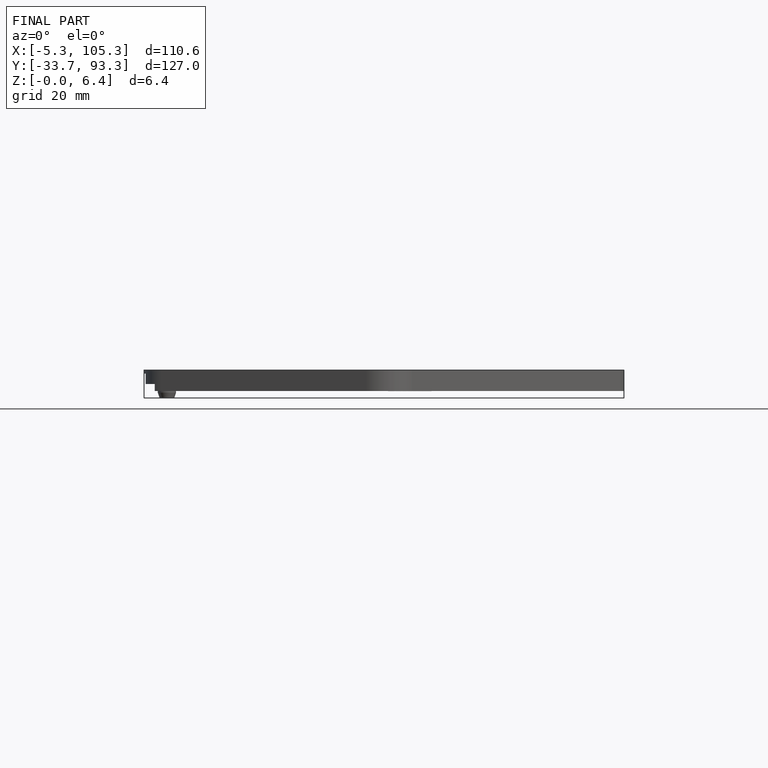
[diagram: finished part — front view with bounding-box wireframe]
